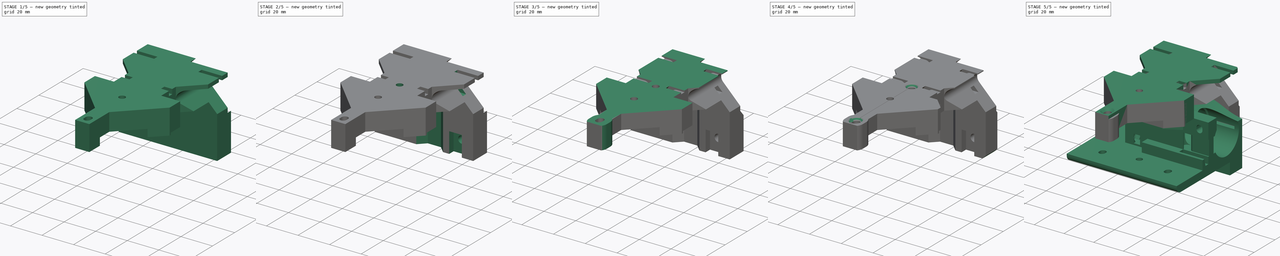
[diagram: build sequence overview — one tinted view per stage of 5, left to right]
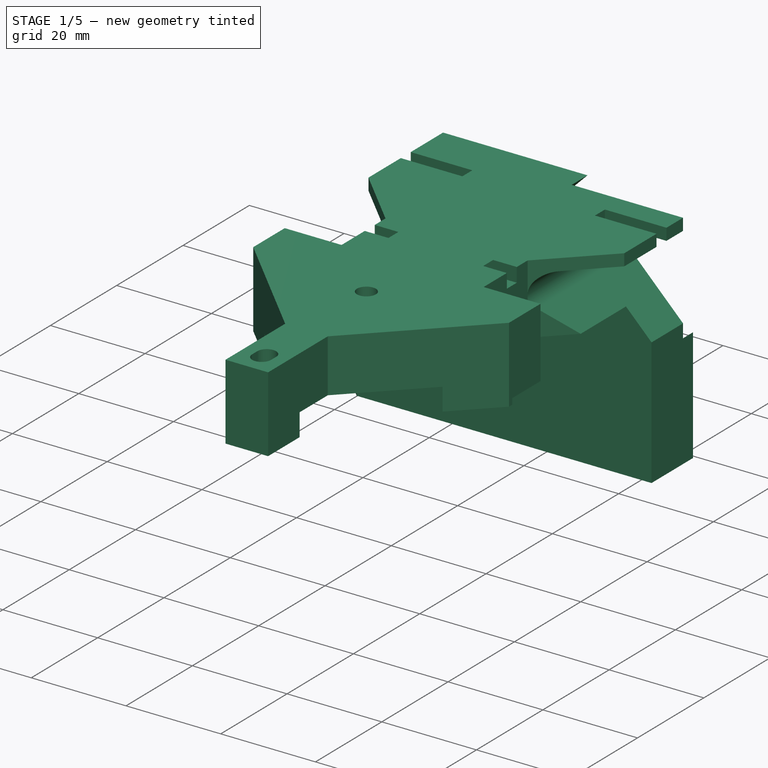
[diagram: stage 1 of 5 — iso view after this stage's code; geometry added in this stage tinted green]
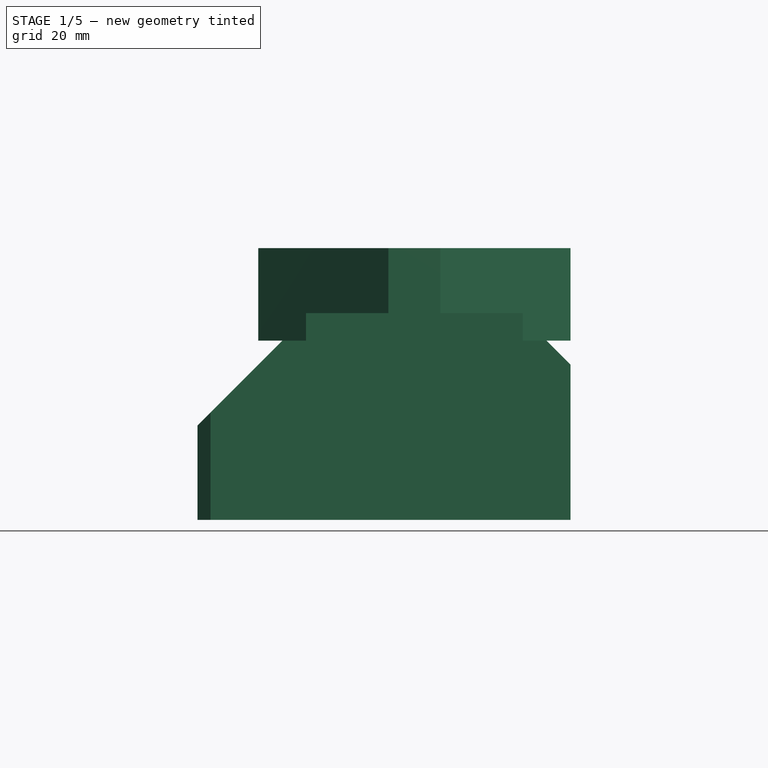
[diagram: stage 1 of 5 — front view after this stage's code; geometry added in this stage tinted green]
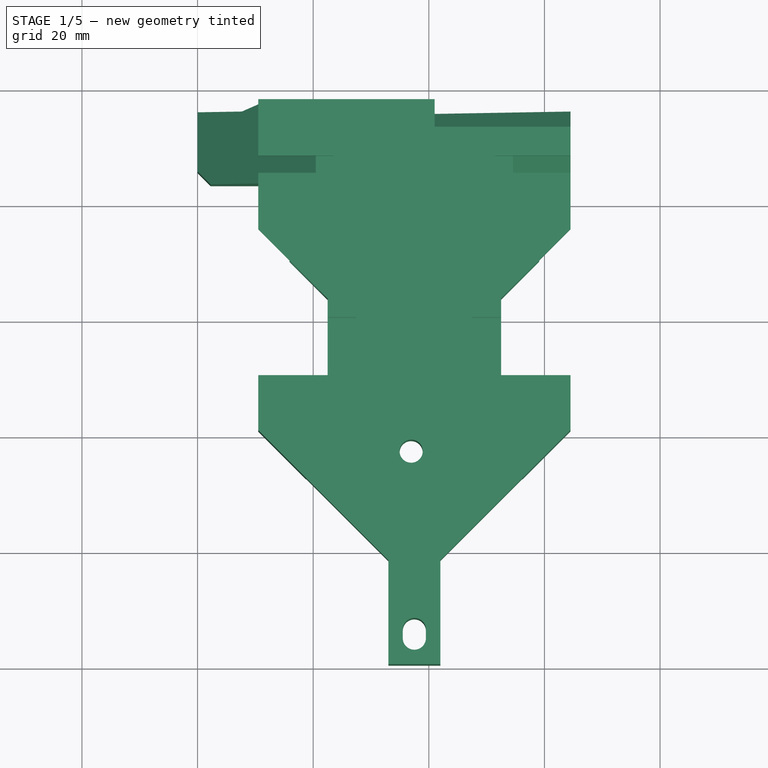
[diagram: stage 1 of 5 — top view after this stage's code; geometry added in this stage tinted green]
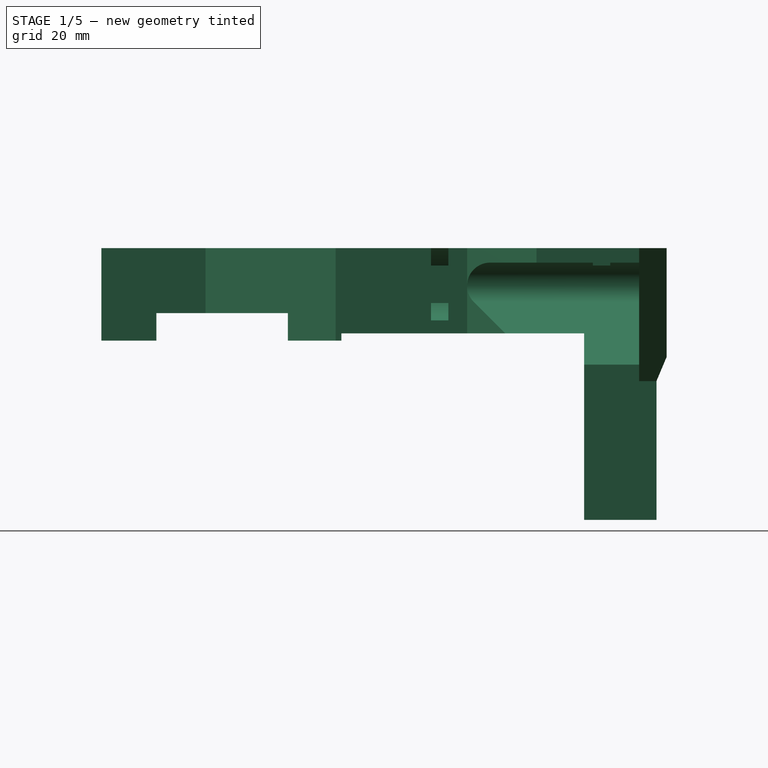
[diagram: stage 1 of 5 — right view after this stage's code; geometry added in this stage tinted green]
FCSTD DOCUMENT  (FreeCAD 0.17R13662 (Git))
Label: x_carriage_cover_v1.4
License: CreativeCommons Attribution-ShareAlike
LicenseURL: http://creativecommons.org/licenses/by-sa/4.0/
objects: Sketcher::SketchObject×22, PartDesign::Pocket×20, App::FeaturePython×14, PartDesign::Chamfer×8, Part::FeaturePython×4, PartDesign::Pad×2, PartDesign::Body×1
note: 79 computed .brp shape members not serialized (recipe doc carries the construction recipe); baked Part::Feature solids carry a one-line shape summary decoded from their .brp

FEATURE [Sketcher::SketchObject] Sketch
  MapMode = 5
  Support = -> [XY_Plane]
  sketch-geometry (23):
    g0: LineSegment StartX=33 StartY=0 StartZ=0 EndX=33 EndY=18 EndZ=0
    g1: LineSegment StartX=33 StartY=18 StartZ=0 EndX=10.5 EndY=40.5 EndZ=0
    g2: LineSegment StartX=10.5 StartY=40.5 StartZ=0 EndX=10.5 EndY=50 EndZ=0
    g3: LineSegment StartX=10.5 StartY=50 StartZ=0 EndX=22.5 EndY=50 EndZ=0
    g4: LineSegment StartX=22.5 StartY=50 StartZ=0 EndX=22.5 EndY=63.25 EndZ=0
    g5: LineSegment StartX=22.5 StartY=63.25 StartZ=0 EndX=0 EndY=85.75 EndZ=0
    g6: LineSegment StartX=0 StartY=85.75 StartZ=0 EndX=0 EndY=97.75 EndZ=0
    g7: LineSegment StartX=0 StartY=97.75 StartZ=0 EndX=42.5 EndY=97.75 EndZ=0
    g8: LineSegment StartX=42.5 StartY=97.75 StartZ=0 EndX=42.5 EndY=96 EndZ=0
    g9: LineSegment StartX=42.5 StartY=96 StartZ=0 EndX=64.5 EndY=96 EndZ=0
    g10: LineSegment StartX=64.5 StartY=96 StartZ=0 EndX=64.5 EndY=75.25 EndZ=0
    g11: LineSegment StartX=64.5 StartY=75.25 StartZ=0 EndX=52.5 EndY=63.25 EndZ=0
    g12: LineSegment StartX=52.5 StartY=63.25 StartZ=0 EndX=52.5 EndY=50 EndZ=0
    g13: LineSegment StartX=52.5 StartY=50 StartZ=0 EndX=64.5 EndY=50 EndZ=0
    g14: LineSegment StartX=64.5 StartY=50 StartZ=0 EndX=64.5 EndY=40.5 EndZ=0
    g15: LineSegment StartX=64.5 StartY=40.5 StartZ=0 EndX=42 EndY=18 EndZ=0
    g16: LineSegment StartX=42 StartY=18 StartZ=0 EndX=42 EndY=0 EndZ=0
    g17: LineSegment StartX=42 StartY=0 StartZ=0 EndX=33 EndY=0 EndZ=0
    g18: Circle CenterX=36.95 CenterY=36.85 CenterZ=0 NormalX=0 NormalY=0 NormalZ=1 AngleXU=0 Radius=2
    g19: ArcOfCircle CenterX=37.5 CenterY=6 CenterZ=0 NormalX=0 NormalY=0 NormalZ=1 AngleXU=0 Radius=2 StartAngle=0 EndAngle=3.14159
    g20: ArcOfCircle CenterX=37.5 CenterY=4.5 CenterZ=0 NormalX=0 NormalY=0 NormalZ=1 AngleXU=0 Radius=2 StartAngle=3.14159 EndAngle=6.28319
    g21: LineSegment StartX=35.5 StartY=6 StartZ=0 EndX=35.5 EndY=4.5 EndZ=0
    g22: LineSegment StartX=39.5 StartY=6 StartZ=0 EndX=39.5 EndY=4.5 EndZ=0
  constraints (67):
    c: Coincident(g0,g1)
    c: Coincident(g1,g2)
    c: Coincident(g2,g3)
    c: Coincident(g3,g4)
    c: Coincident(g4,g5)
    c: Coincident(g5,g6)
    c: Coincident(g6,g7)
    c: Coincident(g7,g8)
    c: Coincident(g8,g9)
    c: Coincident(g9,g10)
    c: Coincident(g10,g11)
    c: Coincident(g11,g12)
    c: Coincident(g12,g13)
    c: Coincident(g13,g14)
    c: Coincident(g14,g15)
    c: Coincident(g15,g16)
    c: Coincident(g16,g17)
    c: Coincident(g17,g0)
    c: Horizontal(g17)
    c: Horizontal(g7)
    c: Horizontal(g9)
    c: Horizontal(g13)
    c: Horizontal(g3)
    c: Vertical(g2)
    c: Vertical(g14)
    c: Vertical(g16)
    c: Vertical(g0)
    c: Vertical(g10)
    c: Vertical(g8)
    c: Vertical(g6)
    c: Vertical(g4)
    c: Vertical(g12)
    c: PointOnObject(g0,g-1)
    c: DistanceX(g0) = 33
    c: DistanceX(g17,g17) = 9
    c: Equal(g16,g0)
    c: Angle(g1) = 2.35619
    c: DistanceY(g0,g0) = 18
    c: Angle(g15) = -2.35619
    c: Equal(g3,g13)
    c: Equal(g14,g2)
    c: Equal(g1,g15)
    c: DistanceY(g14,g14) = 9.5
    c: Equal(g12,g4)
    c: Parallel(g11,g15)
    c: Parallel(g5,g1)
    c: DistanceX(g13,g13) = 12
    c: DistanceY(g12,g12) = 13.25
    c: DistanceX(g11,g11) = 12
    c: DistanceY(g10,g10) = 20.75
    c: DistanceX(g7,g7) = 42.5
    c: DistanceY(g18) = 36.85
    c: Radius(g18) = 2
    c: Tangent(g19,g22) = 1.5708
    c: Tangent(g19,g21) = -1.5708
    c: Tangent(g21,g20) = -1.5708
    c: Tangent(g22,g20) = 1.5708
    c: Vertical(g21)
    c: Equal(g19,g20)
    c: DistanceY(g19) = 6
    c: Radius(g19) = 2
    c: DistanceY(g22,g22) = 1.5
    c: DistanceX(g1,g1) = 22.5
    c: DistanceX(g18) = 36.95
    c: DistanceX(g0,g20) = 4.5
    c: PointOnObject(g5,g-2)
    c: DistanceY(g6,g6) = 12
FEATURE [PartDesign::Pad] Pad
  Length = 47
  Length2 = 100
  Profile = -> Sketch
  Reversed = true
  Type = 0
FEATURE [Sketcher::SketchObject] Sketch012
  MapMode = 5
  Placement = pos=(0,0,-14.75) rot=(1,0,0;3.14159rad)
  sketch-geometry (20):
    g0: LineSegment StartX=24.325 StartY=-65.5653 StartZ=0 EndX=50.825 EndY=-65.5653 EndZ=0
    g1: LineSegment StartX=50.825 StartY=-65.5653 StartZ=0 EndX=50.825 EndY=-81.0653 EndZ=0
    g2: LineSegment StartX=50.825 StartY=-81.0653 StartZ=0 EndX=24.325 EndY=-81.0653 EndZ=0
    g3: LineSegment StartX=24.325 StartY=-81.0653 StartZ=0 EndX=24.325 EndY=-65.5653 EndZ=0
    g4: LineSegment StartX=24.375 StartY=-30.6999 StartZ=0 EndX=50.875 EndY=-30.6999 EndZ=0
    g5: LineSegment StartX=50.875 StartY=-30.6999 StartZ=0 EndX=40.875 EndY=-20.6999 EndZ=0
    g6: LineSegment StartX=40.875 StartY=-20.6999 StartZ=0 EndX=34.375 EndY=-20.6999 EndZ=0
    g7: LineSegment StartX=34.375 StartY=-20.6999 StartZ=0 EndX=24.375 EndY=-30.6999 EndZ=0
    g8: LineSegment StartX=13.5 StartY=-44 StartZ=0 EndX=61.5 EndY=-44 EndZ=0
    g9: LineSegment StartX=61.5 StartY=-44 StartZ=0 EndX=61.5 EndY=-47.5 EndZ=0
    g10: LineSegment StartX=61.5 StartY=-47.5 StartZ=0 EndX=47.5 EndY=-47.5 EndZ=0
    g11: LineSegment StartX=47.5 StartY=-47.5 StartZ=0 EndX=47.5 EndY=-52.5 EndZ=0
    g12: LineSegment StartX=47.5 StartY=-52.5 StartZ=0 EndX=42.5 EndY=-52.5 EndZ=0
    g13: LineSegment StartX=42.5 StartY=-52.5 StartZ=0 EndX=39 EndY=-49.5 EndZ=0
    g14: LineSegment StartX=39 StartY=-49.5 StartZ=0 EndX=36 EndY=-49.5 EndZ=0
    g15: LineSegment StartX=36 StartY=-49.5 StartZ=0 EndX=32.5 EndY=-52.5 EndZ=0
    g16: LineSegment StartX=32.5 StartY=-52.5 StartZ=0 EndX=27.5 EndY=-52.5 EndZ=0
    g17: LineSegment StartX=27.5 StartY=-52.5 StartZ=0 EndX=27.5 EndY=-47.5 EndZ=0
    g18: LineSegment StartX=27.5 StartY=-47.5 StartZ=0 EndX=13.5 EndY=-47.5 EndZ=0
    g19: LineSegment StartX=13.5 StartY=-47.5 StartZ=0 EndX=13.5 EndY=-44 EndZ=0
  constraints (60):
    c: Coincident(g0,g1)
    c: Coincident(g1,g2)
    c: Coincident(g2,g3)
    c: Coincident(g3,g0)
    c: Horizontal(g0)
    c: Horizontal(g2)
    c: Vertical(g1)
    c: Vertical(g3)
    c: Coincident(g4,g5)
    c: Coincident(g5,g6)
    c: Coincident(g6,g7)
    c: Coincident(g8,g9)
    c: Coincident(g9,g10)
    c: Coincident(g10,g11)
    c: Coincident(g11,g12)
    c: Coincident(g12,g13)
    c: Coincident(g13,g14)
    c: Coincident(g14,g15)
    c: Coincident(g15,g16)
    c: Coincident(g16,g17)
    c: Coincident(g17,g18)
    c: Coincident(g18,g19)
    c: Coincident(g8,g19)
    c: Coincident(g4,g7)
    c: Horizontal(g14)
    c: Horizontal(g16)
    c: Horizontal(g12)
    c: Horizontal(g10)
    c: Horizontal(g8)
    c: Horizontal(g18)
    c: Horizontal(g4)
    c: Horizontal(g6)
    c: Vertical(g11)
    c: Vertical(g17)
    c: Vertical(g19)
    c: Vertical(g9)
    c: DistanceY(g8) = -44
    c: DistanceX(g8,g8) = 48
    c: DistanceY(g9,g9) = 3.5
    c: Equal(g19,g9)
    c: Equal(g10,g18)
    c: Equal(g12,g16)
    c: DistanceX(g14,g14) = 3
    c: Equal(g15,g13)
    c: DistanceX(g12,g12) = 5
    c: DistanceX(g10,g10) = 14
    c: Equal(g17,g11)
    c: DistanceY(g11,g11) = 5
    c: DistanceY(g15,g15) = 3
    c: DistanceY(g6) = -20.6999
    c: DistanceX(g6,g6) = 6.5
    c: Equal(g5,g7)
    c: Angle(g7) = -2.35619
    c: DistanceY(g5,g5) = 10
    c: DistanceY(g0) = -65.5653
    c: DistanceX(g0,g0) = 26.5
    c: DistanceY(g1,g1) = 15.5
    c: DistanceX(g6) = 34.375
    c: DistanceX(g-1,g8) = 13.5
    c: DistanceX(g0) = 24.325
FEATURE [Sketcher::SketchObject] Sketch015
  MapMode = 5
  Placement = pos=(0,96,0) rot=(0,0.707107,0.707107;3.14159rad)
  sketch-geometry (1):
    g0: Circle CenterX=-54.5 CenterY=-39 CenterZ=0 NormalX=0 NormalY=0 NormalZ=1 AngleXU=0 Radius=2.35
  constraints (3):
    c: DistanceY(g0) = -39
    c: Radius(g0) = 2.35
    c: DistanceX(g0) = -54.5
FEATURE [Sketcher::SketchObject] Sketch016
  MapMode = 5
  Placement = pos=(0,0,-47) rot=(1,0,0;3.14159rad)
  sketch-geometry (4):
    g0: LineSegment StartX=49.3 StartY=-83.5 StartZ=0 EndX=57.3 EndY=-83.5 EndZ=0
    g1: LineSegment StartX=57.3 StartY=-83.5 StartZ=0 EndX=57.3 EndY=-87.5 EndZ=0
    g2: LineSegment StartX=57.3 StartY=-87.5 StartZ=0 EndX=49.3 EndY=-87.5 EndZ=0
    g3: LineSegment StartX=49.3 StartY=-87.5 StartZ=0 EndX=49.3 EndY=-83.5 EndZ=0
  constraints (12):
    c: Coincident(g0,g1)
    c: Coincident(g1,g2)
    c: Coincident(g2,g3)
    c: Coincident(g3,g0)
    c: Horizontal(g0)
    c: Horizontal(g2)
    c: Vertical(g1)
    c: Vertical(g3)
    c: DistanceX(g0,g0) = 8
    c: DistanceY(g1,g1) = 4
    c: DistanceY(g0) = -83.5
    c: DistanceX(g2) = 49.3
FEATURE [PartDesign::Pocket] Pocket
  BaseFeature = -> Pad
  Length = 5
  Length2 = 100
  Profile = -> Sketch001
  Type = 1
FEATURE [PartDesign::Pocket] Pocket001
  BaseFeature = -> Pocket
  Length = 3
  Length2 = 100
  Profile = -> Sketch002
  Type = 0
FEATURE [PartDesign::Pocket] Pocket002
  BaseFeature = -> Pocket001
  Length = 5
  Length2 = 100
  Profile = -> Sketch003
  Type = 0
FEATURE [PartDesign::Pocket] Pocket003
  BaseFeature = -> Pocket002
  Length = 35
  Length2 = 100
  Profile = -> Sketch004
  Type = 0
FEATURE [PartDesign::Pocket] Pocket004
  BaseFeature = -> Pocket003
  Length = 3
  Length2 = 100
  Profile = -> Sketch005
  Reversed = true
  Type = 0
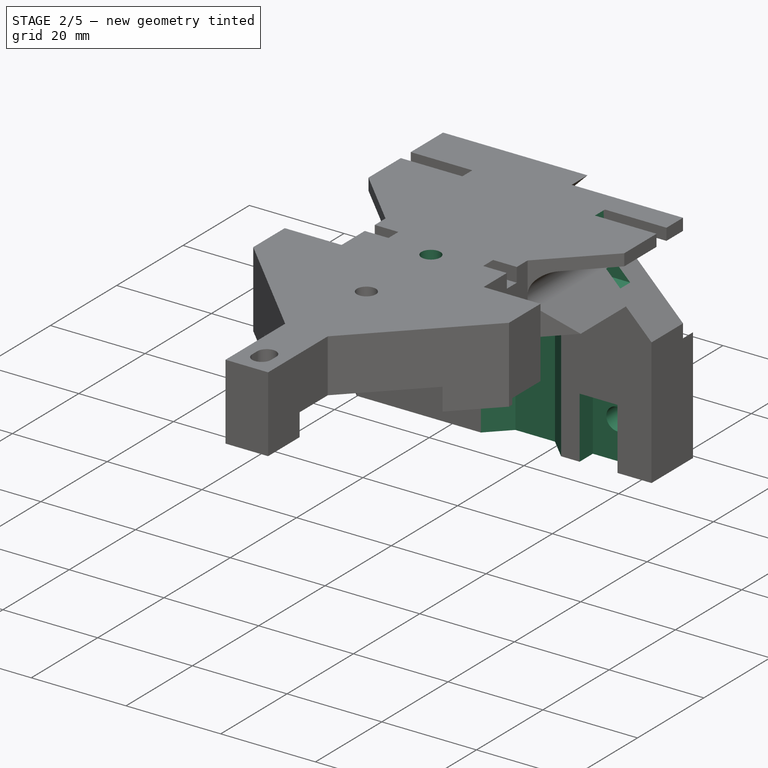
[diagram: stage 2 of 5 — iso view after this stage's code; geometry added in this stage tinted green]
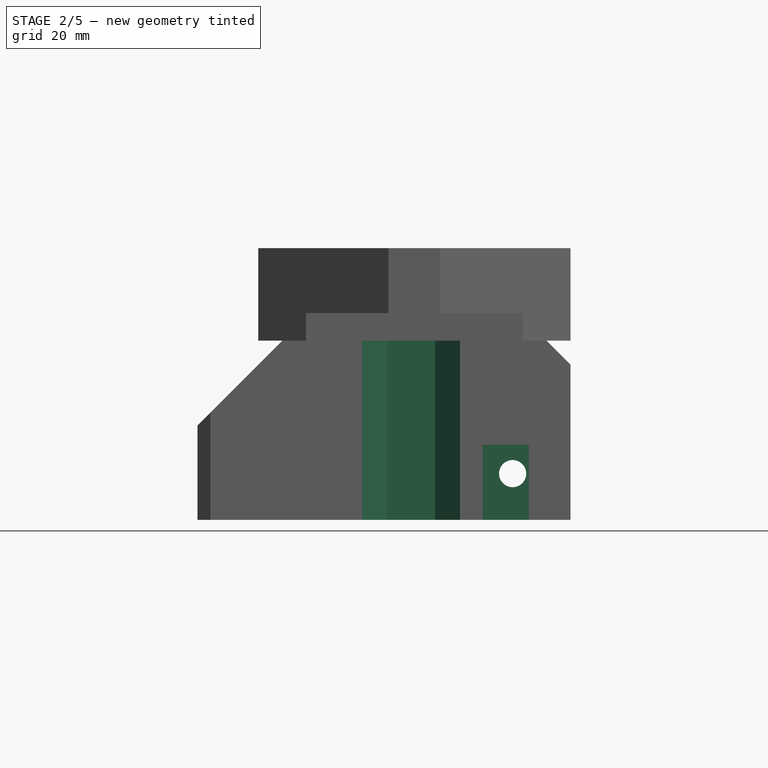
[diagram: stage 2 of 5 — front view after this stage's code; geometry added in this stage tinted green]
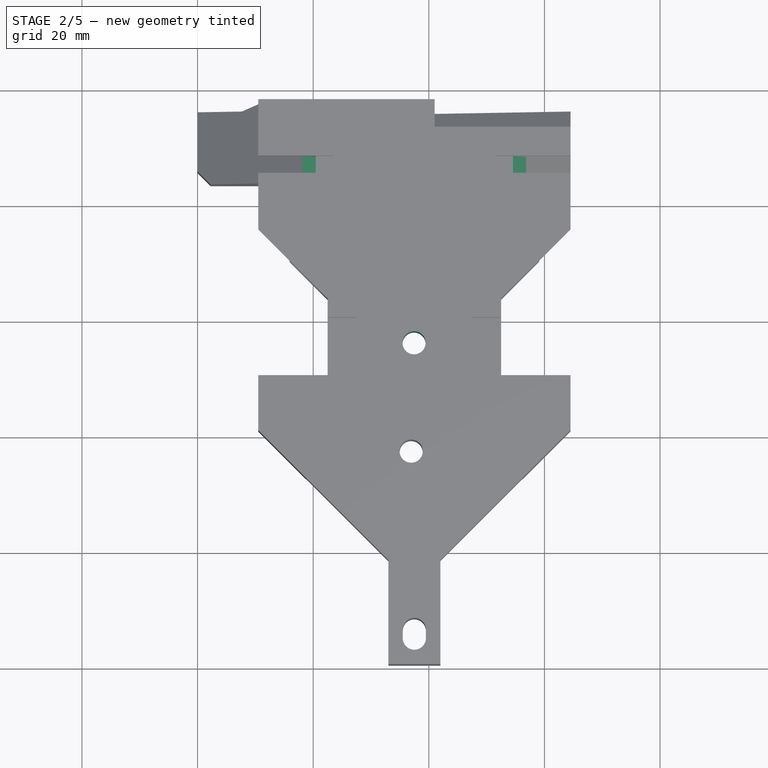
[diagram: stage 2 of 5 — top view after this stage's code; geometry added in this stage tinted green]
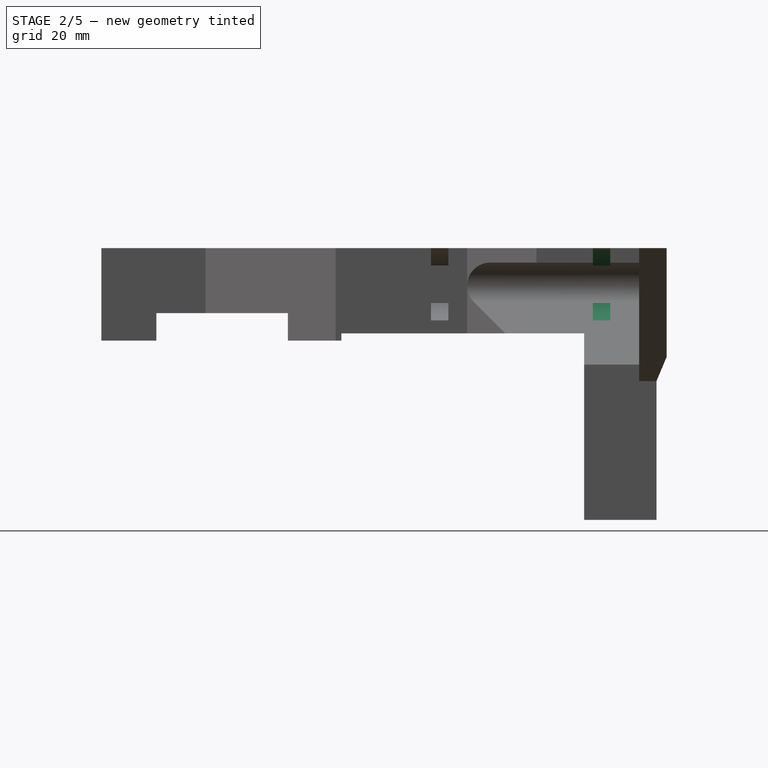
[diagram: stage 2 of 5 — right view after this stage's code; geometry added in this stage tinted green]
FEATURE [PartDesign::Pocket] Pocket005
  BaseFeature = -> Pocket004
  Length = 3
  Length2 = 100
  Profile = -> Sketch006
  Reversed = true
  Type = 0
FEATURE [PartDesign::Pocket] Pocket006
  BaseFeature = -> Pocket005
  Length = 7
  Length2 = 100
  Profile = -> Sketch007
  Type = 0
FEATURE [PartDesign::Pocket] Pocket007
  BaseFeature = -> Pocket006
  Length = 32.25
  Length2 = 100
  Profile = -> Sketch010
  Type = 0
FEATURE [PartDesign::Pocket] Pocket008
  BaseFeature = -> Pocket007
  Length = 5
  Length2 = 100
  Profile = -> Sketch011
  Type = 1
FEATURE [PartDesign::Pocket] Pocket009
  BaseFeature = -> Pocket008
  Length = 11
  Length2 = 100
  Profile = -> Sketch012
  Type = 0
FEATURE [PartDesign::Pocket] Pocket010
  BaseFeature = -> Pocket009
  Length = 5
  Length2 = 100
  Profile = -> Sketch015
  Type = 1
FEATURE [PartDesign::Pocket] Pocket011
  BaseFeature = -> Pocket010
  Length = 13
  Length2 = 100
  Profile = -> Sketch016
  Type = 0
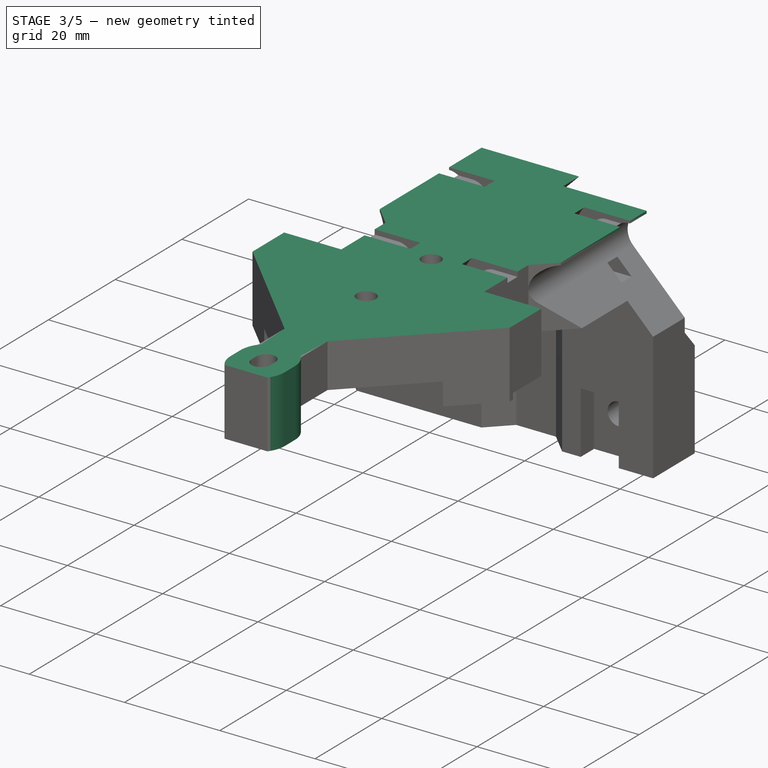
[diagram: stage 3 of 5 — iso view after this stage's code; geometry added in this stage tinted green]
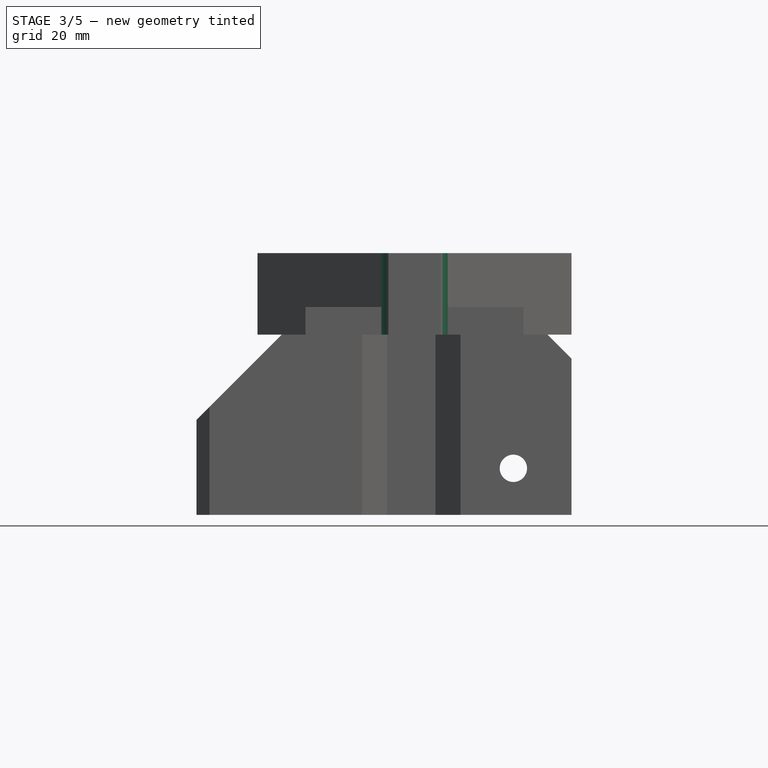
[diagram: stage 3 of 5 — front view after this stage's code; geometry added in this stage tinted green]
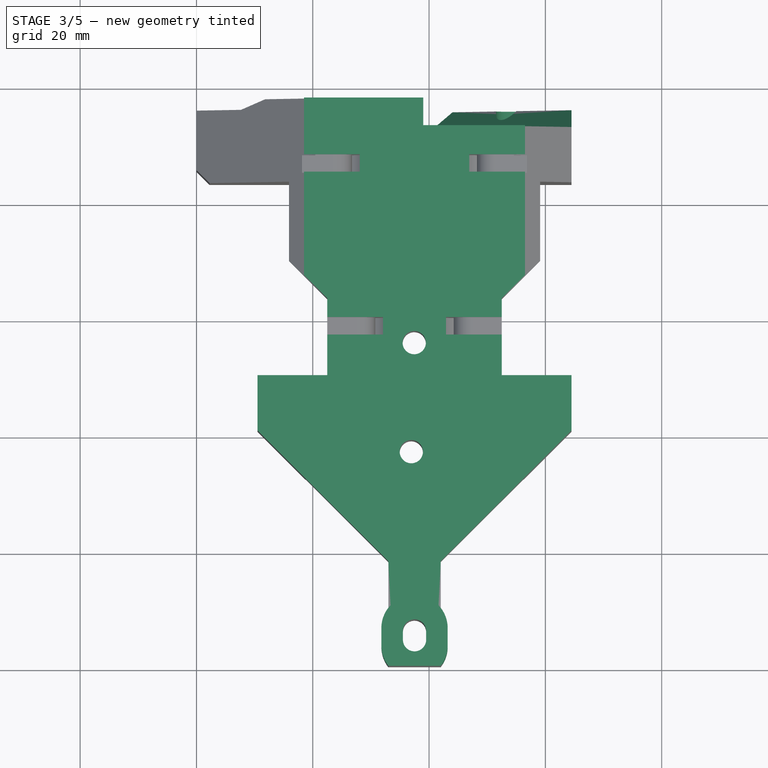
[diagram: stage 3 of 5 — top view after this stage's code; geometry added in this stage tinted green]
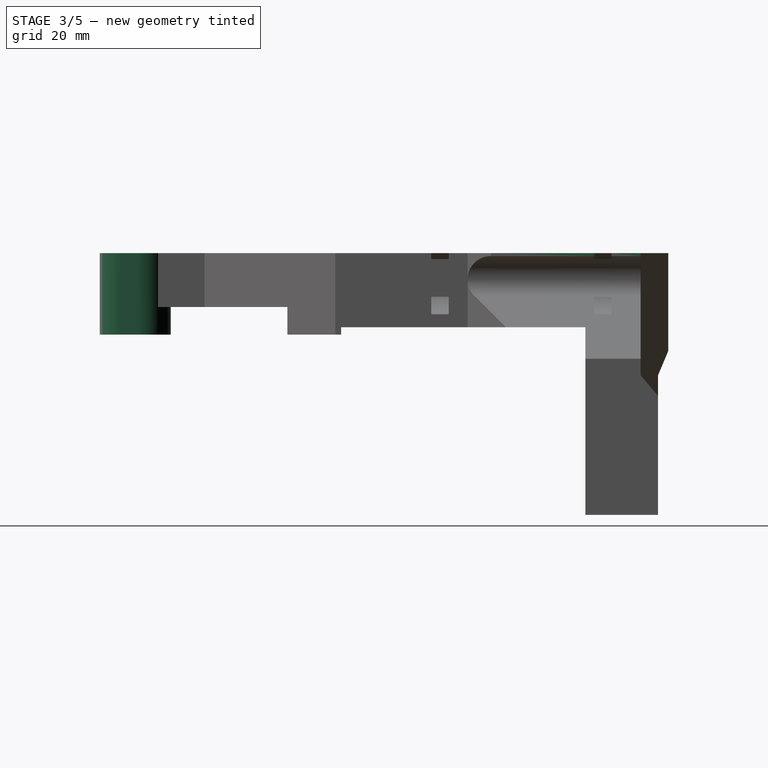
[diagram: stage 3 of 5 — right view after this stage's code; geometry added in this stage tinted green]
FEATURE [App::FeaturePython] axialConstraint01  label="axialConstraint01__x_carriage_cover_v1_1_01"  # a2plus constraint (typed FeaturePython)
  Object1 = x_carriage_v0_1_01
  Object2 = x_carriage_cover_v1_1_01
  SubElement1 = Face59
  SubElement2 = Face117
  Type = axial
  directionConstraint = 0
  lockRotation = false
FEATURE [App::FeaturePython] axialConstraint01_mirror  label="axialConstraint01__x_carriage_v0_1_01"  # a2plus constraint (typed FeaturePython)
  Object1 = x_carriage_v0_1_01
  Object2 = x_carriage_cover_v1_1_01
  SubElement1 = Face59
  SubElement2 = Face117
  Type = axial
  directionConstraint = 0
  lockRotation = false
FEATURE [App::FeaturePython] circularEdgeConstraint01001  label="circularEdgeConstraint01__Pocket014"  # a2plus constraint (typed FeaturePython)
  Object1 = x_carriage_cover_v1_1_01
  Object2 = Pocket013
  SubElement1 = Edge83
  SubElement2 = Edge44
  Type = circularEdge
  directionConstraint = 0
  lockRotation = false
  offset = 0
FEATURE [App::FeaturePython] circularEdgeConstraint01_mirror001  label="circularEdgeConstraint01__x_carriage_cover_v1_1_002"  # a2plus constraint (typed FeaturePython)
  Object1 = x_carriage_cover_v1_1_01
  Object2 = Pocket013
  SubElement1 = Edge83
  SubElement2 = Edge44
  Type = circularEdge
  directionConstraint = 0
  lockRotation = false
  offset = 0
FEATURE [App::FeaturePython] circularEdgeConstraint01002  label="circularEdgeConstraint01__Pocket015"  # a2plus constraint (typed FeaturePython)
  Object1 = x_carriage_cover_v1_1_01
  Object2 = Pocket013
  SubElement1 = Edge83
  SubElement2 = Edge44
  Type = circularEdge
  directionConstraint = 0
  lockRotation = false
  offset = 0
FEATURE [App::FeaturePython] circularEdgeConstraint01_mirror002  label="circularEdgeConstraint01__x_carriage_cover_v1_1_003"  # a2plus constraint (typed FeaturePython)
  Object1 = x_carriage_cover_v1_1_01
  Object2 = Pocket013
  SubElement1 = Edge83
  SubElement2 = Edge44
  Type = circularEdge
  directionConstraint = 0
  lockRotation = false
  offset = 0
FEATURE [App::FeaturePython] axialConstraint01001  label="axialConstraint01__x_carriage_v0_1_002"  # a2plus constraint (typed FeaturePython)
  Object1 = x_carriage_cover_v1_1_01
  Object2 = x_carriage_v0_1_01
  SubElement1 = Face59
  SubElement2 = Face117
  Type = axial
  directionConstraint = 0
  lockRotation = false
FEATURE [App::FeaturePython] axialConstraint01_mirror001  label="axialConstraint01__x_carriage_cover_v1_1_002"  # a2plus constraint (typed FeaturePython)
  Object1 = x_carriage_cover_v1_1_01
  Object2 = x_carriage_v0_1_01
  SubElement1 = Face59
  SubElement2 = Face117
  Type = axial
  directionConstraint = 0
  lockRotation = false
FEATURE [App::FeaturePython] circularEdgeConstraint01_mirror003  label="circularEdgeConstraint01__x_carriage_cover_v1_1_004"  # a2plus constraint (typed FeaturePython)
  Object1 = x_carriage_cover_v1_1_01
  Object2 = Pad
  SubElement1 = Edge83
  SubElement2 = Edge68
  Type = circularEdge
  directionConstraint = 0
  lockRotation = false
  offset = 0
FEATURE [App::FeaturePython] circularEdgeConstraint01003  label="circularEdgeConstraint01__Pad"  # a2plus constraint (typed FeaturePython)
  Object1 = x_carriage_cover_v1_1_01
  Object2 = Pad
  SubElement1 = Edge83
  SubElement2 = Edge68
  Type = circularEdge
  directionConstraint = 0
  lockRotation = false
  offset = 0
FEATURE [App::FeaturePython] circularEdgeConstraint02  label="circularEdgeConstraint02__Pad"  # a2plus constraint (typed FeaturePython)
  Object1 = x_carriage_cover_v1_1_01
  Object2 = Pad
  SubElement1 = Edge83
  SubElement2 = Edge68
  Type = circularEdge
  directionConstraint = 0
  lockRotation = false
  offset = 0
FEATURE [App::FeaturePython] circularEdgeConstraint02_mirror  label="circularEdgeConstraint02__x_carriage_cover_v1_1_01"  # a2plus constraint (typed FeaturePython)
  Object1 = x_carriage_cover_v1_1_01
  Object2 = Pad
  SubElement1 = Edge83
  SubElement2 = Edge68
  Type = circularEdge
  directionConstraint = 0
  lockRotation = false
  offset = 0
FEATURE [App::FeaturePython] circularEdgeConstraint01004  label="circularEdgeConstraint01__Pad001"  # a2plus constraint (typed FeaturePython)
  Object1 = x_carriage_cover_v1_1_01
  Object2 = Pad
  SubElement1 = Edge83
  SubElement2 = Edge68
  Type = circularEdge
  directionConstraint = 0
  lockRotation = false
  offset = 0
FEATURE [App::FeaturePython] circularEdgeConstraint01_mirror004  label="circularEdgeConstraint01__x_carriage_cover_v1_1_005"  # a2plus constraint (typed FeaturePython)
  Object1 = x_carriage_cover_v1_1_01
  Object2 = Pad
  SubElement1 = Edge83
  SubElement2 = Edge68
  Type = circularEdge
  directionConstraint = 0
  lockRotation = false
  offset = 0
FEATURE [Part::FeaturePython] x_carriage_cover_v1_01  # a2plus imported part (geometry in sourceFile) (typed FeaturePython)
  fixedPosition = true
  sourceFile = <userpath>/Projects/taz-redgum/production_parts/printed_parts/x_carriage_cover/x_carriage_cover_v1.fcstd
  timeLastImport = 1.5526e+09
  updateColors = true
FEATURE [Part::FeaturePython] x_carriage_cover_v1_01001  label="x_carriage_cover_v1_002"  # a2plus imported part (geometry in sourceFile) (typed FeaturePython)
  Placement = pos=(9.5,0,0) rot=(0,0,1;0rad)
  fixedPosition = true
  sourceFile = <userpath>/Projects/taz-redgum/production_parts/printed_parts/x_carriage_cover/x_carriage_cover_v1.fcstd
  timeLastImport = 1.5526e+09
  updateColors = true
FEATURE [PartDesign::Pocket] Pocket012
  BaseFeature = -> Pocket011
  Length = 2
  Length2 = 100
  Profile = -> Sketch018
  Type = 0
FEATURE [Sketcher::SketchObject] Sketch019
  ExternalGeometry = -> [Pocket012]
  MapMode = 5
  Placement = pos=(22.1716,0,22.1716) rot=(0,1,0;0.785398rad)
  Support = -> [Pocket012]
  sketch-geometry (3):
    g0: LineSegment StartX=61.8718 StartY=93 StartZ=0 EndX=64.3718 EndY=96 EndZ=0
    g1: LineSegment StartX=64.3718 StartY=96 StartZ=0 EndX=61.8718 EndY=96 EndZ=0
    g2: LineSegment StartX=61.8718 StartY=96 StartZ=0 EndX=61.8718 EndY=93 EndZ=0
  constraints (9):
    c: Coincident(g0,g1)
    c: Coincident(g1,g2)
    c: Coincident(g2,g0)
    c: DistanceY(g0) = 93
    c: Vertical(g2)
    c: Horizontal(g1)
    c: DistanceY(g2,g2) = 3
    c: DistanceX(g1,g1) = 2.5
    c: Coincident(g1,g-3)
FEATURE [PartDesign::Pocket] Pocket013
  BaseFeature = -> Pocket012
  Length = 5
  Length2 = 100
  Profile = -> Sketch019
  Type = 1
FEATURE [PartDesign::Pocket] Pocket014
  BaseFeature = -> Pocket013
  Length = 2
  Length2 = 100
  Profile = -> Pocket013 [Face2]
  Type = 0
FEATURE [Sketcher::SketchObject] Sketch013
  MapMode = 5
  Placement = pos=(0,0,-2) rot=(0,0,1;0rad)
  Support = -> [Pocket014]
  sketch-geometry (4):
    g0: LineSegment StartX=37.55 StartY=53.6 StartZ=0 EndX=37.65 EndY=53.6 EndZ=0
    g1: LineSegment StartX=37.65 StartY=53.6 StartZ=0 EndX=37.65 EndY=0 EndZ=0
    g2: LineSegment StartX=37.65 StartY=0 StartZ=0 EndX=37.55 EndY=0 EndZ=0
    g3: LineSegment StartX=37.55 StartY=0 StartZ=0 EndX=37.55 EndY=53.6 EndZ=0
  constraints (12):
    c: Coincident(g0,g1)
    c: Coincident(g1,g2)
    c: Coincident(g2,g3)
    c: Coincident(g3,g0)
    c: Horizontal(g0)
    c: Horizontal(g2)
    c: Vertical(g1)
    c: Vertical(g3)
    c: PointOnObject(g1,g-1)
    c: DistanceX(g2,g2) = 0.1
    c: DistanceY(g1,g1) = 53.6
    c: DistanceX(g2) = 37.55
FEATURE [Sketcher::SketchObject] Sketch020
  MapMode = 5
  Placement = pos=(0,0,-2) rot=(0,0,1;0rad)
  Support = -> [Pocket014]
  sketch-geometry (10):
    g0: ArcOfCircle CenterX=37.5 CenterY=3.5 CenterZ=0 NormalX=0 NormalY=0 NormalZ=1 AngleXU=0 Radius=5.70088 StartAngle=3.14159 EndAngle=3.80264
    g1: ArcOfCircle CenterX=37.5 CenterY=6.5 CenterZ=0 NormalX=0 NormalY=0 NormalZ=1 AngleXU=0 Radius=5.70088 StartAngle=0 EndAngle=3.14159
    g2: LineSegment StartX=43.2009 StartY=3.5 StartZ=0 EndX=43.2009 EndY=6.5 EndZ=0
    g3: LineSegment StartX=31.7991 StartY=3.5 StartZ=0 EndX=31.7991 EndY=6.5 EndZ=0
    g4: LineSegment StartX=33 StartY=0 StartZ=0 EndX=42 EndY=0 EndZ=0
    g5: ArcOfCircle CenterX=37.5 CenterY=3.5 CenterZ=0 NormalX=0 NormalY=0 NormalZ=1 AngleXU=0 Radius=5.70088 StartAngle=5.62214 EndAngle=6.28319
    g6: ArcOfCircle CenterX=37.5 CenterY=4.5 CenterZ=0 NormalX=0 NormalY=0 NormalZ=1 AngleXU=0 Radius=2 StartAngle=3.14159 EndAngle=6.28319
    g7: ArcOfCircle CenterX=37.5 CenterY=6 CenterZ=0 NormalX=0 NormalY=0 NormalZ=1 AngleXU=0 Radius=2 StartAngle=0 EndAngle=3.14159
    g8: LineSegment StartX=39.5 StartY=4.5 StartZ=0 EndX=39.5 EndY=6 EndZ=0
    g9: LineSegment StartX=35.5 StartY=4.5 StartZ=0 EndX=35.5 EndY=6 EndZ=0
  constraints (28):
    c: Tangent(g0,g3) = 1.5708
    c: Tangent(g2,g1) = -1.5708
    c: Tangent(g3,g1) = 1.5708
    c: Vertical(g2)
    c: Equal(g0,g1)
    c: Equal(g0,g5)
    c: PointOnObject(g0,g4)
    c: PointOnObject(g5,g4)
    c: Coincident(g0,g5)
    c: DistanceX(g1) = 37.5
    c: DistanceY(g1) = 6.5
    c: DistanceY(g0,g1) = 3
    c: Coincident(g4,g5)
    c: Coincident(g0,g4)
    c: DistanceX(g4,g4) = 9
    c: Horizontal(g4)
    c: PointOnObject(g0,g-1)
    c: Tangent(g6,g9) = 1.5708
    c: Tangent(g6,g8) = -1.5708
    c: Tangent(g8,g7) = -1.5708
    c: Tangent(g9,g7) = 1.5708
    c: Vertical(g8)
    c: Equal(g6,g7)
    c: DistanceX(g1,g7) = 0
    c: DistanceY(g1,g7) = -0.5
    c: DistanceY(g6,g7) = 1.5
    c: Radius(g7) = 2
    c: Tangent(g5,g2) = -1.5708
FEATURE [PartDesign::Pad] Pad001
  BaseFeature = -> Pocket014
  Length = 14
  Length2 = 100
  Profile = -> Sketch020
  Reversed = true
  Type = 0
FEATURE [Sketcher::SketchObject] Sketch021
  MapMode = 5
  Placement = pos=(10.5,0,0) rot=(0.57735,-0.57735,-0.57735;2.0944rad)
  Support = -> [Pad001]
  sketch-geometry (4):
    g0: LineSegment StartX=-50 StartY=-14.75 StartZ=0 EndX=-41.5 EndY=-14.75 EndZ=0
    g1: LineSegment StartX=-41.5 StartY=-14.75 StartZ=0 EndX=-41.5 EndY=-12.5 EndZ=0
    g2: LineSegment StartX=-41.5 StartY=-12.5 StartZ=0 EndX=-50 EndY=-12.5 EndZ=0
    g3: LineSegment StartX=-50 StartY=-12.5 StartZ=0 EndX=-50 EndY=-14.75 EndZ=0
  constraints (12):
    c: Coincident(g0,g1)
    c: Coincident(g1,g2)
    c: Coincident(g2,g3)
    c: Coincident(g3,g0)
    c: Horizontal(g0)
    c: Horizontal(g2)
    c: Vertical(g1)
    c: Vertical(g3)
    c: DistanceX(g1) = -41.5
    c: DistanceY(g1) = -12.5
    c: DistanceX(g2,g2) = 8.5
    c: DistanceY(g3,g3) = 2.25
FEATURE [PartDesign::Pocket] Pocket015
  BaseFeature = -> Pad001
  Length = 12
  Length2 = 100
  Profile = -> Sketch021
  Type = 0
FEATURE [Sketcher::SketchObject] Sketch022
  MapMode = 5
  Placement = pos=(0,97.75,0) rot=(0,0.707107,0.707107;3.14159rad)
  Support = -> [Pocket014]
FEATURE [Sketcher::SketchObject] Sketch023
  MapMode = 5
  Placement = pos=(0,97.75,0) rot=(0,0.707107,0.707107;3.14159rad)
  Support = -> [Pocket015]
  sketch-geometry (12):
    g0: LineSegment StartX=-10.5 StartY=-2.5 StartZ=0 EndX=-18.5 EndY=-2.5 EndZ=0
    g1: LineSegment StartX=-18.5 StartY=-2.5 StartZ=0 EndX=-18.5 EndY=-2 EndZ=0
    g2: LineSegment StartX=-18.5 StartY=-2 StartZ=0 EndX=-10.5 EndY=-2 EndZ=0
    g3: LineSegment StartX=-10.5 StartY=-2 StartZ=0 EndX=-10.5 EndY=-2.5 EndZ=0
    g4: LineSegment StartX=-64.5 StartY=-2 StartZ=0 EndX=-56.5 EndY=-2 EndZ=0
    g5: LineSegment StartX=-56.5 StartY=-2 StartZ=0 EndX=-56.5 EndY=-2.5 EndZ=0
    g6: LineSegment StartX=-56.5 StartY=-2.5 StartZ=0 EndX=-64.5 EndY=-2.5 EndZ=0
    g7: LineSegment StartX=-64.5 StartY=-2.5 StartZ=0 EndX=-64.5 EndY=-2 EndZ=0
    g8: LineSegment [constr] StartX=-56.5 StartY=-2.5 StartZ=0 EndX=-18.5 EndY=-2.5 EndZ=0
    g9: LineSegment [constr] StartX=-18.5 StartY=-2.5 StartZ=0 EndX=-18.5 EndY=-2 EndZ=0
    g10: LineSegment [constr] StartX=-18.5 StartY=-2 StartZ=0 EndX=-56.5 EndY=-2 EndZ=0
    g11: LineSegment [constr] StartX=-56.5 StartY=-2 StartZ=0 EndX=-56.5 EndY=-2.5 EndZ=0
  constraints (34):
    c: Coincident(g0,g1)
    c: Coincident(g1,g2)
    c: Coincident(g2,g3)
    c: Coincident(g3,g0)
    c: Horizontal(g0)
    c: Horizontal(g2)
    c: Vertical(g1)
    c: Vertical(g3)
    c: Coincident(g4,g5)
    c: Coincident(g5,g6)
    c: Coincident(g6,g7)
    c: Coincident(g7,g4)
    c: Horizontal(g4)
    c: Horizontal(g6)
    c: Vertical(g5)
    c: Vertical(g7)
    c: Coincident(g8,g9)
    c: Coincident(g9,g10)
    c: Coincident(g10,g11)
    c: Coincident(g11,g8)
    c: Horizontal(g8)
    c: Horizontal(g10)
    c: Vertical(g9)
    c: Vertical(g11)
    c: Coincident(g8,g5)
    c: Coincident(g9,g1)
    c: DistanceX(g2) = -10.5
    c: DistanceY(g2) = -2
    c: DistanceY(g3,g3) = 0.5
    c: Coincident(g0,g8)
    c: DistanceX(g0,g0) = 8
    c: Coincident(g4,g10)
    c: DistanceX(g4) = -64.5
    c: Equal(g6,g0)
FEATURE [PartDesign::Pocket] Pocket016
  BaseFeature = -> Pocket015
  Length = 40
  Length2 = 100
  Profile = -> Sketch023
  Type = 0
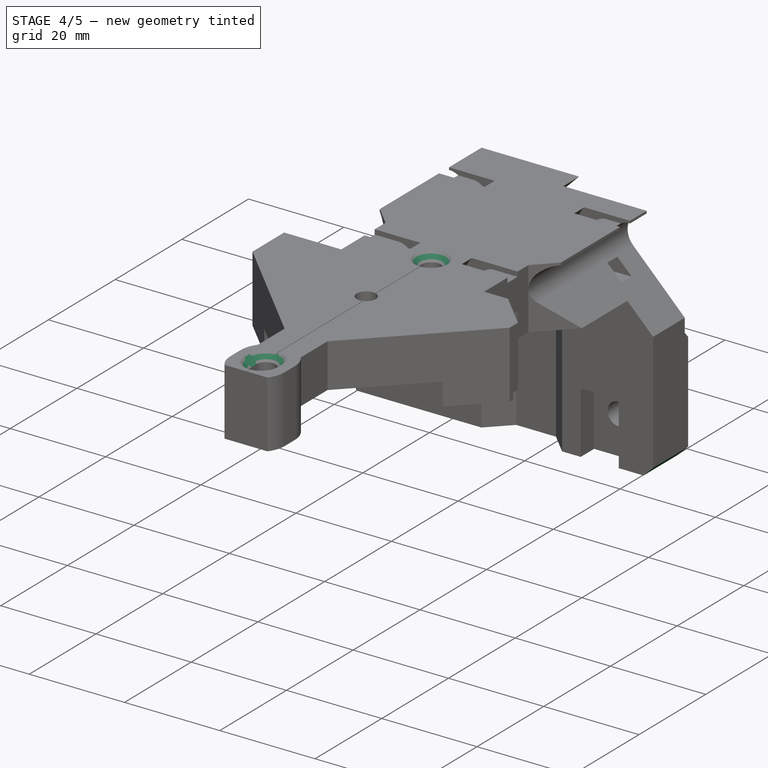
[diagram: stage 4 of 5 — iso view after this stage's code; geometry added in this stage tinted green]
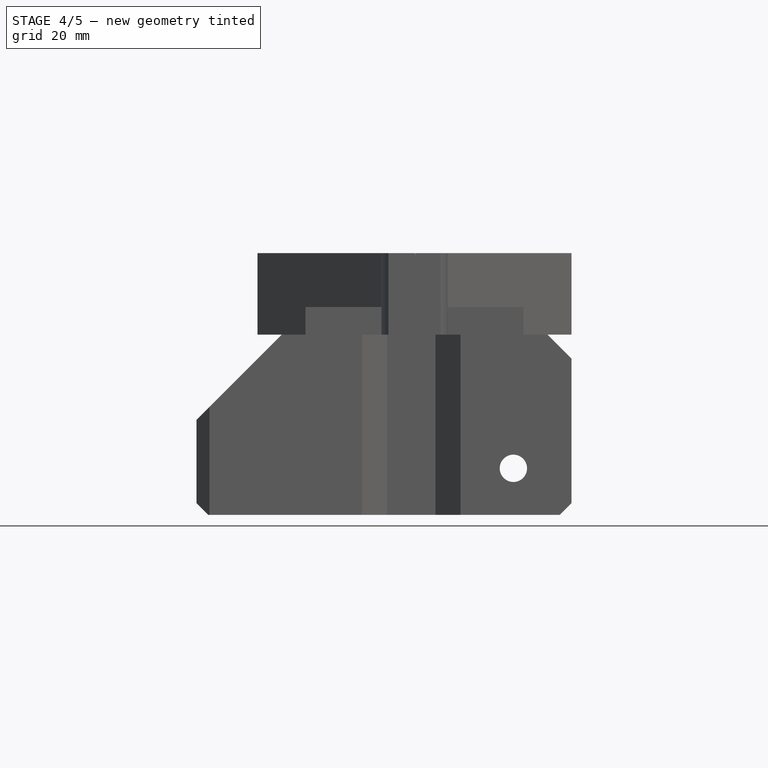
[diagram: stage 4 of 5 — front view after this stage's code; geometry added in this stage tinted green]
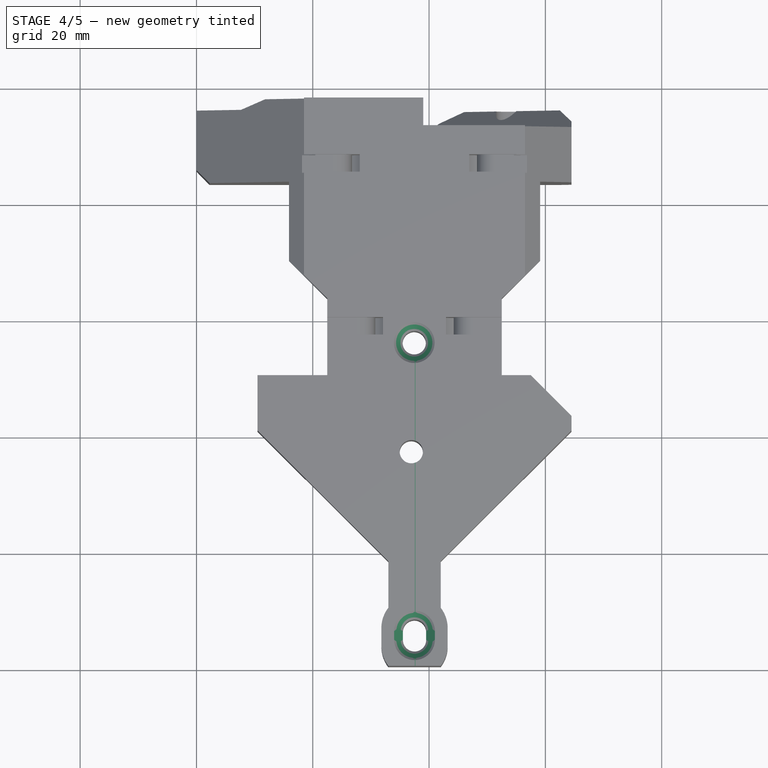
[diagram: stage 4 of 5 — top view after this stage's code; geometry added in this stage tinted green]
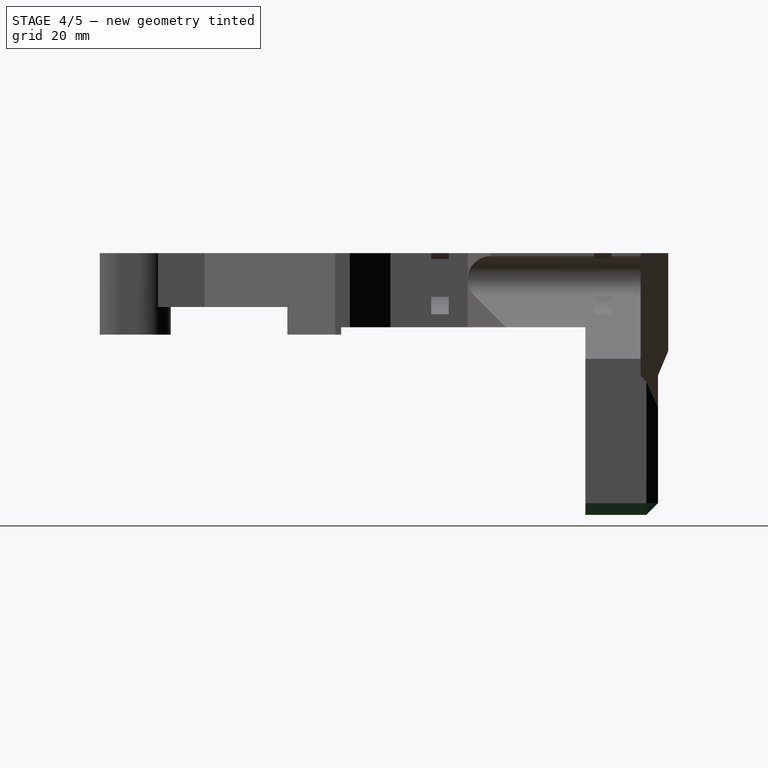
[diagram: stage 4 of 5 — right view after this stage's code; geometry added in this stage tinted green]
FEATURE [PartDesign::Chamfer] Chamfer
  Base = -> Pocket016 [Edge53,Edge205]
  BaseFeature = -> Pocket016
  Size = 1.5
FEATURE [PartDesign::Pocket] Pocket017
  BaseFeature = -> Chamfer
  Length = 0.3
  Length2 = 100
  Profile = -> Sketch013
  Type = 0
FEATURE [PartDesign::Chamfer] Chamfer001
  Base = -> Pocket017 [Edge145,Edge330,Edge329,Edge339,Edge318,Edge146]
  BaseFeature = -> Pocket017
  Size = 2
FEATURE [PartDesign::Chamfer] Chamfer002
  Base = -> Chamfer001 [Edge363]
  BaseFeature = -> Chamfer001
  Size = 3.49
FEATURE [PartDesign::Chamfer] Chamfer003
  Base = -> Chamfer002 [Edge149]
  BaseFeature = -> Chamfer002
  Size = 2.49
FEATURE [PartDesign::Chamfer] Chamfer004
  Base = -> Chamfer003 [Edge170]
  BaseFeature = -> Chamfer003
  Size = 7
FEATURE [PartDesign::Chamfer] Chamfer005
  Base = -> Chamfer004 [Edge306,Edge296]
  BaseFeature = -> Chamfer004
  Size = 1
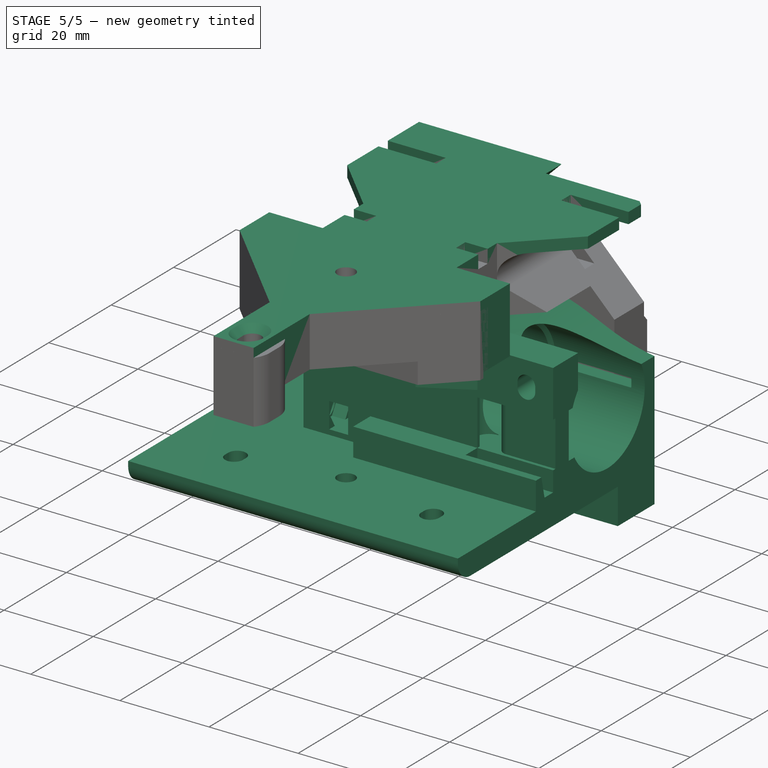
[diagram: stage 5 of 5 — iso view after this stage's code; geometry added in this stage tinted green]
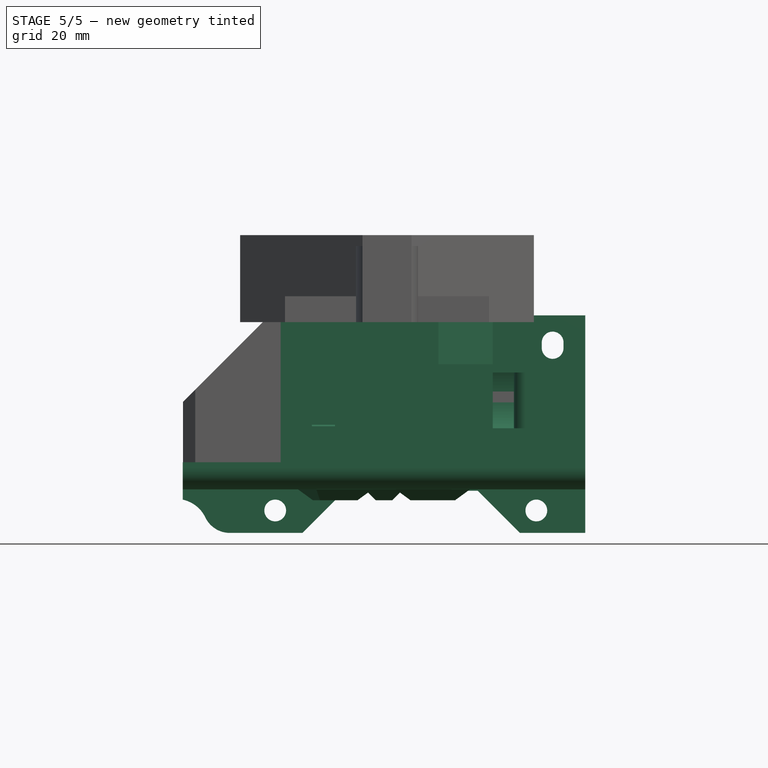
[diagram: stage 5 of 5 — front view after this stage's code; geometry added in this stage tinted green]
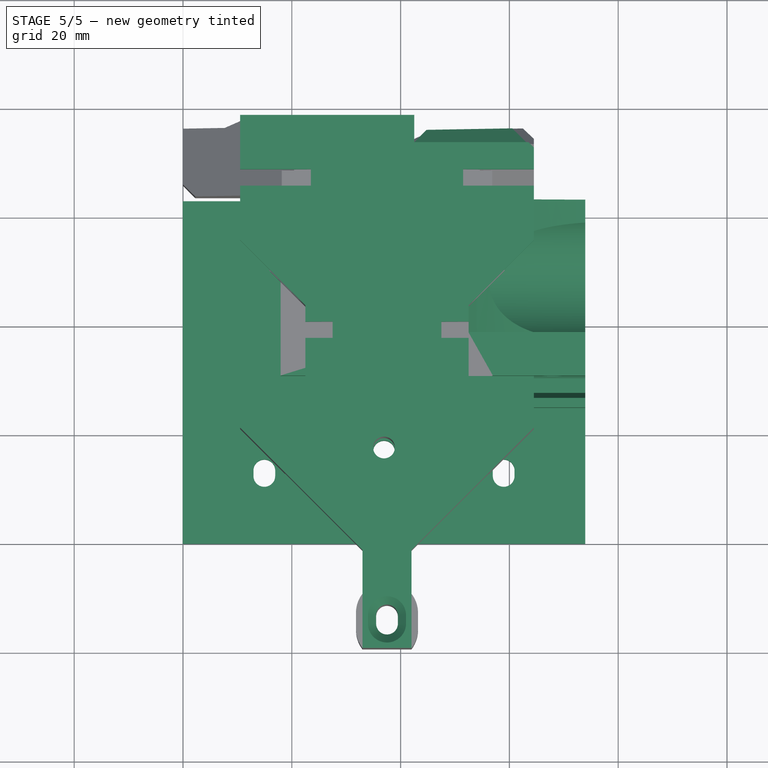
[diagram: stage 5 of 5 — top view after this stage's code; geometry added in this stage tinted green]
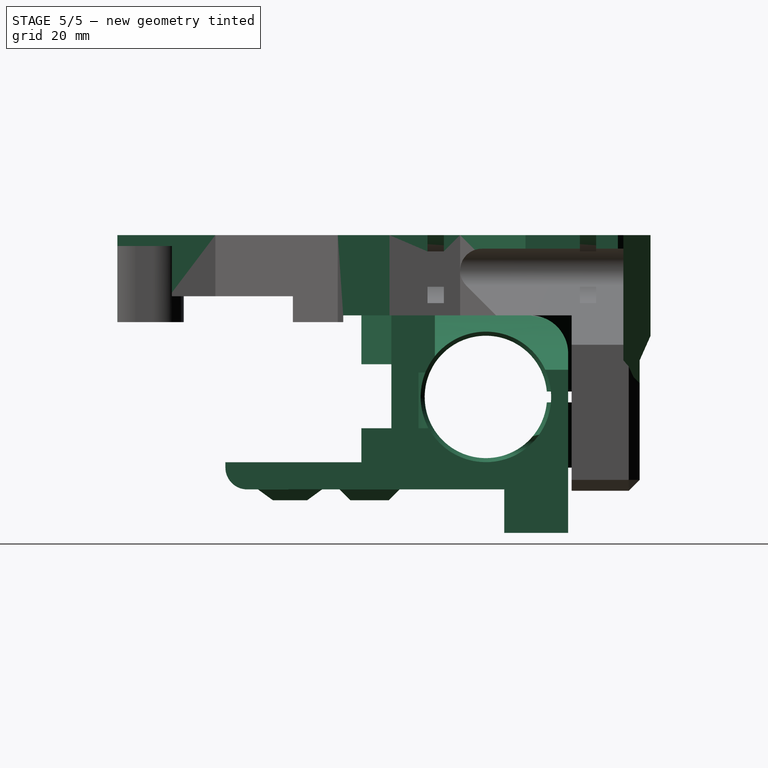
[diagram: stage 5 of 5 — right view after this stage's code; geometry added in this stage tinted green]
FEATURE [Sketcher::SketchObject] Sketch001
  MapMode = 5
  Placement = pos=(64.5,0,0) rot=(0.57735,0.57735,0.57735;2.0944rad)
  Support = -> [Pad]
  sketch-geometry (14):
    g0: LineSegment StartX=98 StartY=-18.25 StartZ=0 EndX=96 EndY=-23 EndZ=0
    g1: LineSegment StartX=96 StartY=-23 StartZ=0 EndX=96 EndY=-47 EndZ=0
    g2: LineSegment StartX=96 StartY=-47 StartZ=0 EndX=98 EndY=-47 EndZ=0
    g3: LineSegment StartX=98 StartY=-47 StartZ=0 EndX=98 EndY=-18.25 EndZ=0
    g4: LineSegment StartX=83.5 StartY=-47 StartZ=0 EndX=83.5 EndY=-14.75 EndZ=0
    g5: LineSegment StartX=83.5 StartY=-14.75 StartZ=0 EndX=41.5 EndY=-14.75 EndZ=0
    g6: LineSegment StartX=41.5 StartY=-14.75 StartZ=0 EndX=41.5 EndY=-16 EndZ=0
    g7: LineSegment StartX=41.5 StartY=-16 StartZ=0 EndX=32.25 EndY=-16 EndZ=0
    g8: LineSegment StartX=32.25 StartY=-16 StartZ=0 EndX=32.25 EndY=-11.25 EndZ=0
    g9: LineSegment StartX=32.25 StartY=-11.25 StartZ=0 EndX=9.5 EndY=-11.25 EndZ=0
    g10: LineSegment StartX=9.5 StartY=-11.25 StartZ=0 EndX=9.5 EndY=-16 EndZ=0
    g11: LineSegment StartX=9.5 StartY=-16 StartZ=0 EndX=0 EndY=-16 EndZ=0
    g12: LineSegment StartX=0 StartY=-16 StartZ=0 EndX=0 EndY=-47 EndZ=0
    g13: LineSegment StartX=0 StartY=-47 StartZ=0 EndX=83.5 EndY=-47 EndZ=0
  constraints (42):
    c: Coincident(g0,g1)
    c: Coincident(g1,g2)
    c: Coincident(g2,g3)
    c: Coincident(g4,g5)
    c: Coincident(g5,g6)
    c: Coincident(g6,g7)
    c: Coincident(g7,g8)
    c: Coincident(g8,g9)
    c: Coincident(g9,g10)
    c: Coincident(g10,g11)
    c: Coincident(g11,g12)
    c: Coincident(g12,g13)
    c: Coincident(g4,g13)
    c: PointOnObject(g11,g-2)
    c: Horizontal(g7)
    c: Horizontal(g9)
    c: Horizontal(g11)
    c: Horizontal(g5)
    c: Horizontal(g13)
    c: Vertical(g4)
    c: Vertical(g8)
    c: Vertical(g10)
    c: Vertical(g12)
    c: Vertical(g6)
    c: DistanceY(g11) = -16
    c: DistanceX(g11,g11) = 9.5
    c: DistanceY(g10,g10) = 4.75
    c: DistanceX(g9,g9) = 22.75
    c: DistanceY(g8,g8) = 4.75
    c: DistanceX(g7,g7) = 9.25
    c: DistanceY(g6,g6) = 1.25
    c: DistanceX(g5,g5) = 42
    c: DistanceY(g4,g4) = 32.25
    c: Coincident(g0,g3)
    c: Vertical(g3)
    c: Vertical(g1)
    c: Horizontal(g2)
    c: DistanceX(g0) = 98
    c: DistanceY(g0) = -18.25
    c: PointOnObject(g1,g13)
    c: DistanceX(g2,g2) = 2
    c: DistanceY(g1,g1) = 24
FEATURE [Sketcher::SketchObject] Sketch002
  MapMode = 5
  sketch-geometry (16):
    g0: LineSegment StartX=51.5 StartY=88 StartZ=0 EndX=64.5 EndY=88 EndZ=0
    g1: LineSegment StartX=64.5 StartY=88 StartZ=0 EndX=64.5 EndY=85 EndZ=0
    g2: LineSegment StartX=64.5 StartY=85 StartZ=0 EndX=51.5 EndY=85 EndZ=0
    g3: LineSegment StartX=51.5 StartY=85 StartZ=0 EndX=51.5 EndY=88 EndZ=0
    g4: LineSegment StartX=23.5 StartY=88 StartZ=0 EndX=10.5 EndY=88 EndZ=0
    g5: LineSegment StartX=10.5 StartY=88 StartZ=0 EndX=10.5 EndY=85 EndZ=0
    g6: LineSegment StartX=10.5 StartY=85 StartZ=0 EndX=23.5 EndY=85 EndZ=0
    g7: LineSegment StartX=23.5 StartY=85 StartZ=0 EndX=23.5 EndY=88 EndZ=0
    g8: LineSegment StartX=22.5 StartY=60 StartZ=0 EndX=27.5 EndY=60 EndZ=0
    g9: LineSegment StartX=27.5 StartY=60 StartZ=0 EndX=27.5 EndY=57 EndZ=0
    g10: LineSegment StartX=27.5 StartY=57 StartZ=0 EndX=22.5 EndY=57 EndZ=0
    g11: LineSegment StartX=22.5 StartY=57 StartZ=0 EndX=22.5 EndY=60 EndZ=0
    g12: LineSegment StartX=47.5 StartY=60 StartZ=0 EndX=52.5 EndY=60 EndZ=0
    g13: LineSegment StartX=52.5 StartY=60 StartZ=0 EndX=52.5 EndY=57 EndZ=0
    g14: LineSegment StartX=52.5 StartY=57 StartZ=0 EndX=47.5 EndY=57 EndZ=0
    g15: LineSegment StartX=47.5 StartY=57 StartZ=0 EndX=47.5 EndY=60 EndZ=0
  constraints (48):
    c: Coincident(g0,g1)
    c: Coincident(g1,g2)
    c: Coincident(g2,g3)
    c: Coincident(g3,g0)
    c: Horizontal(g0)
    c: Horizontal(g2)
    c: Vertical(g1)
    c: Vertical(g3)
    c: Coincident(g4,g5)
    c: Coincident(g5,g6)
    c: Coincident(g6,g7)
    c: Coincident(g7,g4)
    c: Horizontal(g4)
    c: Horizontal(g6)
    c: Vertical(g5)
    c: Vertical(g7)
    c: Coincident(g8,g9)
    c: Coincident(g9,g10)
    c: Coincident(g10,g11)
    c: Coincident(g11,g8)
    c: Horizontal(g8)
    c: Horizontal(g10)
    c: Vertical(g9)
    c: Vertical(g11)
    c: Coincident(g12,g13)
    c: Coincident(g13,g14)
    c: Coincident(g14,g15)
    c: Coincident(g15,g12)
    c: Horizontal(g12)
    c: Horizontal(g14)
    c: Vertical(g13)
    c: Vertical(g15)
    c: DistanceX(g10) = 22.5
    c: DistanceY(g10) = 57
    c: DistanceY(g11,g11) = 3
    c: DistanceX(g8,g8) = 5
    c: Equal(g15,g9)
    c: Equal(g8,g12)
    c: PointOnObject(g14,g10)
    c: DistanceX(g9,g14) = 20
    c: DistanceY(g5) = 85
    c: DistanceX(g6,g6) = 13
    c: DistanceY(g5,g5) = 3
    c: PointOnObject(g2,g6)
    c: Equal(g3,g7)
    c: Equal(g4,g0)
    c: DistanceX(g6,g2) = 28
    c: DistanceX(g5) = 10.5
FEATURE [Sketcher::SketchObject] Sketch003
  MapMode = 5
  Placement = pos=(0,98,0) rot=(0,0.707107,0.707107;3.14159rad)
  sketch-geometry (6):
    g0: LineSegment StartX=-87.5 StartY=0 StartZ=0 EndX=-41 EndY=0 EndZ=0
    g1: LineSegment StartX=-41 StartY=0 StartZ=0 EndX=-11.5 EndY=-29.5 EndZ=0
    g2: LineSegment StartX=0 StartY=-41 StartZ=0 EndX=0 EndY=-87.5 EndZ=0
    g3: LineSegment StartX=0 StartY=-87.5 StartZ=0 EndX=-87.5 EndY=0 EndZ=0
    g4: LineSegment StartX=-11.5 StartY=-29.5 StartZ=0 EndX=-11.5 EndY=-41 EndZ=0
    g5: LineSegment StartX=-11.5 StartY=-41 StartZ=0 EndX=0 EndY=-41 EndZ=0
  constraints (18):
    c: Coincident(g0,g1)
    c: Coincident(g2,g3)
    c: Coincident(g3,g0)
    c: Horizontal(g0)
    c: PointOnObject(g2,g-2)
    c: PointOnObject(g0,g-1)
    c: PointOnObject(g2,g-2)
    c: Angle(g1) = -0.785398
    c: Parallel(g1,g3)
    c: DistanceX(g0,g0) = 46.5
    c: DistanceY(g2) = -41
    c: Coincident(g4,g5)
    c: Coincident(g2,g5)
    c: Horizontal(g5)
    c: Vertical(g4)
    c: DistanceX(g5,g5) = 11.5
    c: Coincident(g1,g4)
    c: DistanceY(g4,g4) = 11.5
FEATURE [Sketcher::SketchObject] Sketch004
  MapMode = 5
  Placement = pos=(0,98,0) rot=(0,0.707107,0.707107;3.14159rad)
  sketch-geometry (14):
    g0: ArcOfCircle CenterX=-56.5 CenterY=-6.5 CenterZ=0 NormalX=0 NormalY=0 NormalZ=1 AngleXU=0 Radius=4 StartAngle=5.49779 EndAngle=7.85398
    g1: ArcOfCircle CenterX=-18.5 CenterY=-6.5 CenterZ=0 NormalX=0 NormalY=0 NormalZ=1 AngleXU=0 Radius=4 StartAngle=1.5708 EndAngle=3.92699
    g2: LineSegment StartX=-56.5 StartY=-2.5 StartZ=0 EndX=-64.5 EndY=-2.5 EndZ=0
    g3: LineSegment StartX=-64.5 StartY=-2.5 StartZ=0 EndX=-64.5 EndY=-20.1569 EndZ=0
    g4: LineSegment StartX=-64.5 StartY=-20.1569 StartZ=0 EndX=-53.6716 EndY=-9.32843 EndZ=0
    g5: LineSegment StartX=-18.5 StartY=-2.5 StartZ=0 EndX=-10.5 EndY=-2.5 EndZ=0
    g6: LineSegment StartX=0 StartY=0 StartZ=0 EndX=0 EndY=-30.6569 EndZ=0
    g7: LineSegment StartX=0 StartY=-30.6569 StartZ=0 EndX=-21.3284 EndY=-9.32843 EndZ=0
    g8: LineSegment [constr] StartX=-64.5 StartY=-2.5 StartZ=0 EndX=0 EndY=-2.5 EndZ=0
    g9: LineSegment [constr] StartX=0 StartY=-2.5 StartZ=0 EndX=0 EndY=-30.6569 EndZ=0
    g10: LineSegment [constr] StartX=0 StartY=-30.6569 StartZ=0 EndX=-64.5 EndY=-30.6569 EndZ=0
    g11: LineSegment [constr] StartX=-64.5 StartY=-30.6569 StartZ=0 EndX=-64.5 EndY=-2.5 EndZ=0
    g12: LineSegment StartX=-10.5 StartY=-2.5 StartZ=0 EndX=-10.5 EndY=0 EndZ=0
    g13: LineSegment StartX=-10.5 StartY=0 StartZ=0 EndX=0 EndY=0 EndZ=0
  constraints (38):
    c: Coincident(g2,g3)
    c: Coincident(g6,g7)
    c: Tangent(g0,g4) = -1.5708
    c: Tangent(g0,g2) = -1.5708
    c: Tangent(g1,g7) = 1.5708
    c: Tangent(g1,g5) = 1.5708
    c: Horizontal(g2)
    c: Horizontal(g5)
    c: Vertical(g6)
    c: Vertical(g3)
    c: PointOnObject(g6,g-2)
    c: DistanceY(g5) = -2.5
    c: Angle(g7) = 2.35619
    c: Radius(g1) = 4
    c: Coincident(g9,g10)
    c: Coincident(g11,g8)
    c: Horizontal(g8)
    c: Horizontal(g10)
    c: Vertical(g9)
    c: Vertical(g11)
    c: Coincident(g6,g9)
    c: Coincident(g2,g8)
    c: DistanceX(g8,g8) = 64.5
    c: Equal(g0,g1)
    c: Coincident(g6,g-1)
    c: Coincident(g8,g9)
    c: PointOnObject(g8,g5)
    c: Coincident(g12,g13)
    c: Coincident(g6,g13)
    c: Coincident(g5,g12)
    c: Vertical(g12)
    c: Horizontal(g13)
    c: DistanceX(g13,g13) = 10.5
    c: DistanceX(g5,g5) = 8
    c: Coincident(g3,g4)
    c: Coincident(g10,g11)
    c: Angle(g4) = 0.785398
    c: Equal(g2,g5)
FEATURE [Sketcher::SketchObject] Sketch005
  MapMode = 5
  Placement = pos=(0,57,0) rot=(0,0.707107,0.707107;3.14159rad)
  sketch-geometry (22):
    g0: ArcOfCircle CenterX=-47.5 CenterY=-6.25 CenterZ=0 NormalX=0 NormalY=0 NormalZ=1 AngleXU=0 Radius=3.25 StartAngle=4.71239 EndAngle=7.85398
    g1: ArcOfCircle CenterX=-27.5 CenterY=-6.25 CenterZ=0 NormalX=0 NormalY=0 NormalZ=1 AngleXU=0 Radius=3.25 StartAngle=1.57079 EndAngle=4.71239
    g2: ArcOfCircle CenterX=-27.5 CenterY=-6.25 CenterZ=0 NormalX=0 NormalY=0 NormalZ=1 AngleXU=0 Radius=6.25 StartAngle=1.57079 EndAngle=4.71239
    g3: ArcOfCircle CenterX=-47.5 CenterY=-6.25 CenterZ=0 NormalX=0 NormalY=0 NormalZ=1 AngleXU=0 Radius=6.25 StartAngle=4.71239 EndAngle=7.85398
    g4: LineSegment StartX=-27.5 StartY=-9.5 StartZ=0 EndX=0 EndY=-9.5 EndZ=0
    g5: LineSegment StartX=0 StartY=-9.5 StartZ=0 EndX=0 EndY=-12.5 EndZ=0
    g6: LineSegment StartX=0 StartY=-12.5 StartZ=0 EndX=-27.5 EndY=-12.5 EndZ=0
    g7: LineSegment [constr] StartX=-27.5 StartY=-12.5 StartZ=0 EndX=-27.5 EndY=-9.5 EndZ=0
    g8: LineSegment StartX=-27.5 StartY=0 StartZ=0 EndX=-27.5 EndY=-3 EndZ=0
    g9: LineSegment StartX=-47.5 StartY=-9.5 StartZ=0 EndX=-75 EndY=-9.5 EndZ=0
    g10: LineSegment StartX=-75 StartY=-9.5 StartZ=0 EndX=-75 EndY=-12.5 EndZ=0
    g11: LineSegment StartX=-75 StartY=-12.5 StartZ=0 EndX=-47.5 EndY=-12.5 EndZ=0
    g12: LineSegment [constr] StartX=-47.5 StartY=-12.5 StartZ=0 EndX=-47.5 EndY=-9.5 EndZ=0
    g13: LineSegment StartX=-47.5 StartY=0 StartZ=0 EndX=-47.5 EndY=-3 EndZ=0
    g14: LineSegment [constr] StartX=-47.5 StartY=0 StartZ=0 EndX=-27.5 EndY=0 EndZ=0
    g15: LineSegment [constr] StartX=-27.5 StartY=0 StartZ=0 EndX=-27.5 EndY=-3 EndZ=0
    g16: LineSegment [constr] StartX=-27.5 StartY=-3 StartZ=0 EndX=-47.5 EndY=-3 EndZ=0
    g17: LineSegment [constr] StartX=-47.5 StartY=-3 StartZ=0 EndX=-47.5 EndY=0 EndZ=0
    g18: LineSegment [constr] StartX=-27.5 StartY=-9.5 StartZ=0 EndX=-47.5 EndY=-9.5 EndZ=0
    g19: LineSegment [constr] StartX=-47.5 StartY=-9.5 StartZ=0 EndX=-47.5 EndY=-12.5 EndZ=0
    g20: LineSegment [constr] StartX=-47.5 StartY=-12.5 StartZ=0 EndX=-27.5 EndY=-12.5 EndZ=0
    g21: LineSegment [constr] StartX=-27.5 StartY=-12.5 StartZ=0 EndX=-27.5 EndY=-9.5 EndZ=0
  constraints (62):
    c: Coincident(g0,g3)
    c: Coincident(g1,g2)
    c: Tangent(g-1,g2)
    c: Tangent(g3,g-1)
    c: Coincident(g4,g5)
    c: Coincident(g5,g6)
    c: Coincident(g6,g7)
    c: Coincident(g7,g4)
    c: Horizontal(g4)
    c: Horizontal(g6)
    c: Vertical(g5)
    c: Vertical(g7)
    c: Coincident(g1,g4)
    c: Coincident(g2,g6)
    c: DistanceX(g1,g1) = 0
    c: Coincident(g1,g8)
    c: Coincident(g2,g8)
    c: PointOnObject(g5,g-2)
    c: Coincident(g9,g10)
    c: Coincident(g10,g11)
    c: Coincident(g11,g12)
    c: Coincident(g12,g9)
    c: Horizontal(g9)
    c: Horizontal(g11)
    c: Vertical(g10)
    c: Vertical(g12)
    c: Coincident(g3,g11)
    c: Equal(g11,g6)
    c: Coincident(g0,g13)
    c: Coincident(g3,g13)
    c: Vertical(g8)
    c: PointOnObject(g2,g-1)
    c: DistanceY(g8,g8) = 3
    c: DistanceX(g1) = -27.5
    c: DistanceY(g1) = -6.25
    c: Tangent(g0,g9) = 1.5708
    c: Vertical(g13)
    c: Coincident(g14,g15)
    c: Coincident(g15,g16)
    c: Coincident(g16,g17)
    c: Coincident(g17,g14)
    c: Horizontal(g14)
    c: Horizontal(g16)
    c: Vertical(g15)
    c: Vertical(g17)
    c: Coincident(g18,g19)
    c: Coincident(g19,g20)
    c: Coincident(g20,g21)
    c: Coincident(g21,g18)
    c: Horizontal(g18)
    c: Horizontal(g20)
    c: Vertical(g19)
    c: Vertical(g21)
    c: Coincident(g0,g18)
    c: Coincident(g3,g19)
    c: Coincident(g1,g18)
    c: Coincident(g2,g20)
    c: Coincident(g0,g16)
    c: Coincident(g3,g14)
    c: DistanceX(g0,g1) = 20
    c: DistanceX(g0,g0) = 0
    c: Coincident(g14,g2)
FEATURE [Sketcher::SketchObject] Sketch006
  MapMode = 5
  Placement = pos=(0,85,0) rot=(0,0.707107,0.707107;3.14159rad)
  sketch-geometry (21):
    g0: ArcOfCircle CenterX=-51.5 CenterY=-6.25 CenterZ=0 NormalX=0 NormalY=0 NormalZ=1 AngleXU=0 Radius=3.25 StartAngle=4.71239 EndAngle=7.85398
    g1: ArcOfCircle CenterX=-23.5 CenterY=-6.25 CenterZ=0 NormalX=0 NormalY=0 NormalZ=1 AngleXU=0 Radius=3.25 StartAngle=1.5708 EndAngle=4.71239
    g2: LineSegment StartX=0 StartY=0 StartZ=0 EndX=-23.5 EndY=0 EndZ=0
    g3: LineSegment [constr] StartX=-23.5 StartY=0 StartZ=0 EndX=-23.5 EndY=-3 EndZ=0
    g4: LineSegment StartX=-23.5 StartY=-3 StartZ=0 EndX=0 EndY=-3 EndZ=0
    g5: LineSegment StartX=0 StartY=-3 StartZ=0 EndX=0 EndY=0 EndZ=0
    g6: LineSegment StartX=-68.5 StartY=-3.1e-11 StartZ=0 EndX=-51.5 EndY=-3.1e-11 EndZ=0
    g7: LineSegment [constr] StartX=-51.5 StartY=-3.1e-11 StartZ=0 EndX=-51.5 EndY=-3 EndZ=0
    g8: LineSegment StartX=-51.5 StartY=-3 StartZ=0 EndX=-68.5 EndY=-3 EndZ=0
    g9: LineSegment StartX=-68.5 StartY=-3 StartZ=0 EndX=-68.5 EndY=-3.1e-11 EndZ=0
    g10: LineSegment StartX=-51.5 StartY=-9.5 StartZ=0 EndX=-68.5 EndY=-9.5 EndZ=0
    g11: LineSegment StartX=-68.5 StartY=-9.5 StartZ=0 EndX=-68.5 EndY=-12.5 EndZ=0
    g12: LineSegment StartX=-68.5 StartY=-12.5 StartZ=0 EndX=-51.5 EndY=-12.5 EndZ=0
    g13: LineSegment [constr] StartX=-51.5 StartY=-12.5 StartZ=0 EndX=-51.5 EndY=-9.5 EndZ=0
    g14: LineSegment StartX=-23.5 StartY=-9.5 StartZ=0 EndX=0 EndY=-9.5 EndZ=0
    g15: LineSegment StartX=0 StartY=-9.5 StartZ=0 EndX=0 EndY=-12.5 EndZ=0
    g16: LineSegment StartX=0 StartY=-12.5 StartZ=0 EndX=-23.5 EndY=-12.5 EndZ=0
    g17: LineSegment [constr] StartX=-23.5 StartY=-12.5 StartZ=0 EndX=-23.5 EndY=-9.5 EndZ=0
    g18: ArcOfCircle CenterX=-51.5 CenterY=-6.25 CenterZ=0 NormalX=0 NormalY=0 NormalZ=1 AngleXU=0 Radius=6.25 StartAngle=4.71239 EndAngle=7.85398
    g19: ArcOfCircle CenterX=-23.5 CenterY=-6.25 CenterZ=0 NormalX=0 NormalY=0 NormalZ=1 AngleXU=0 Radius=6.25 StartAngle=1.5708 EndAngle=4.71239
    g20: LineSegment [constr] StartX=-51.5 StartY=-6.25 StartZ=0 EndX=-23.5 EndY=-6.25 EndZ=0
  constraints (57):
    c: Coincident(g2,g3)
    c: Coincident(g3,g4)
    c: Coincident(g4,g5)
    c: Coincident(g5,g2)
    c: Horizontal(g2)
    c: Horizontal(g4)
    c: Vertical(g3)
    c: Vertical(g5)
    c: Coincident(g2,g-1)
    c: DistanceY(g5,g5) = 3
    c: Tangent(g1,g4)
    c: Coincident(g7,g8)
    c: Coincident(g8,g9)
    c: Coincident(g9,g6)
    c: Horizontal(g6)
    c: Horizontal(g8)
    c: Vertical(g7)
    c: Vertical(g9)
    c: Coincident(g10,g11)
    c: Coincident(g11,g12)
    c: Coincident(g12,g13)
    c: Coincident(g13,g10)
    c: Horizontal(g10)
    c: Horizontal(g12)
    c: Vertical(g11)
    c: Vertical(g13)
    c: Coincident(g0,g7)
    c: Tangent(g0,g8)
    c: Tangent(g0,g10) = 1.5708
    c: Coincident(g14,g15)
    c: Coincident(g15,g16)
    c: Coincident(g16,g17)
    c: Coincident(g17,g14)
    c: Horizontal(g14)
    c: Horizontal(g16)
    c: Vertical(g15)
    c: Vertical(g17)
    c: PointOnObject(g15,g-2)
    c: Tangent(g1,g14) = -1.5708
    c: Coincident(g12,g18)
    c: Equal(g9,g5)
    c: Coincident(g6,g18)
    c: Coincident(g0,g18)
    c: Equal(g0,g1)
    c: PointOnObject(g10,g9)
    c: DistanceX(g6,g6) = 17
    c: Coincident(g16,g19)
    c: Coincident(g2,g19)
    c: Coincident(g1,g19)
    c: DistanceX(g1) = -23.5
    c: DistanceY(g1) = -6.25
    c: Tangent(g1,g4) = 1.5708
    c: Coincident(g1,g20)
    c: Coincident(g0,g20)
    c: Horizontal(g20)
    c: Coincident(g6,g7)
    c: DistanceX(g20,g20) = 28
FEATURE [Sketcher::SketchObject] Sketch007
  MapMode = 5
  Placement = pos=(0,98,0) rot=(0,0.707107,0.707107;3.14159rad)
  sketch-geometry (2):
    g0: Circle CenterX=-28.5 CenterY=-5.5 CenterZ=0 NormalX=0 NormalY=0 NormalZ=1 AngleXU=0 Radius=2.35
    g1: Circle CenterX=-5.75 CenterY=-35 CenterZ=0 NormalX=0 NormalY=0 NormalZ=1 AngleXU=0 Radius=2.35
  constraints (6):
    c: DistanceY(g0) = -5.5
    c: Radius(g0) = 2.35
    c: DistanceX(g0) = -28.5
    c: DistanceX(g1) = -5.75
    c: DistanceY(g1) = -35
    c: Equal(g1,g0)
FEATURE [Sketcher::SketchObject] Sketch010
  MapMode = 5
  Placement = pos=(0,0,-47) rot=(1,0,0;3.14159rad)
  sketch-geometry (4):
    g0: LineSegment StartX=32.75 StartY=-87.8 StartZ=0 EndX=41.1 EndY=-87.8 EndZ=0
    g1: LineSegment StartX=41.1 StartY=-87.8 StartZ=0 EndX=45.4 EndY=-83.5 EndZ=0
    g2: LineSegment StartX=45.4 StartY=-83.5 StartZ=0 EndX=28.45 EndY=-83.5 EndZ=0
    g3: LineSegment StartX=28.45 StartY=-83.5 StartZ=0 EndX=32.75 EndY=-87.8 EndZ=0
  constraints (12):
    c: Coincident(g0,g1)
    c: Coincident(g1,g2)
    c: Coincident(g2,g3)
    c: Coincident(g3,g0)
    c: Horizontal(g0)
    c: Horizontal(g2)
    c: DistanceY(g0) = -87.8
    c: DistanceX(g0,g0) = 8.35
    c: DistanceY(g3,g3) = 4.3
    c: Angle(g3) = -0.785398
    c: Angle(g1) = 0.785398
    c: DistanceX(g2) = 28.45
FEATURE [Sketcher::SketchObject] Sketch011
  MapMode = 5
  sketch-geometry (1):
    g0: Circle CenterX=37.45 CenterY=55.6 CenterZ=0 NormalX=0 NormalY=0 NormalZ=1 AngleXU=0 Radius=2
  constraints (3):
    c: DistanceY(g0) = 55.6
    c: Radius(g0) = 2
    c: DistanceX(g0) = 37.45
FEATURE [Part::FeaturePython] x_carriage_v0_1_01  # a2plus imported part (geometry in sourceFile) (typed FeaturePython)
  Placement = pos=(73.95,82.85,-54.75) rot=(0.57735,0.57735,-0.57735;4.18879rad)
  fixedPosition = false
  sourceFile = <userpath>/Projects/taz-redgum/production_parts/printed_parts/x_carriage/x_carriage_v0.1.fcstd
  timeLastImport = 1.5526e+09
  updateColors = true
FEATURE [Sketcher::SketchObject] Sketch018
  MapMode = 5
  Placement = pos=(0,96,0) rot=(0,0.707107,0.707107;3.14159rad)
  sketch-geometry (1):
    g0: Circle CenterX=-54.5 CenterY=-39 CenterZ=0 NormalX=0 NormalY=0 NormalZ=1 AngleXU=0 Radius=3
  constraints (3):
    c: DistanceX(g0) = -54.5
    c: DistanceY(g0) = -39
    c: Radius(g0) = 3
FEATURE [Part::FeaturePython] x_carriage_cover_v1_1_01  # a2plus imported part (geometry in sourceFile) (typed FeaturePython)
  Placement = pos=(10.5,0,0) rot=(0,0,1;0rad)
  fixedPosition = true
  sourceFile = <userpath>/Projects/taz-redgum/production_parts/printed_parts/x_carriage_cover/x_carriage_cover_v1.1.fcstd
  timeLastImport = 1.55295e+09
  updateColors = true
FEATURE [Sketcher::SketchObject] Sketch024
  MapMode = 5
  Placement = pos=(0,0,-2) rot=(0,0,1;0rad)
  Support = -> [Chamfer005]
  sketch-geometry (1):
    g0: Circle CenterX=55.9524 CenterY=38.1041 CenterZ=0 NormalX=0 NormalY=0 NormalZ=1 AngleXU=0 Radius=2.35
  constraints (1):
    c: Radius(g0) = 2.35
FEATURE [PartDesign::Pocket] Pocket018
  BaseFeature = -> Chamfer005
  Length = 8
  Length2 = 100
  Profile = -> Sketch024
  Type = 0
FEATURE [PartDesign::Chamfer] Chamfer006
  Base = -> Pocket018 [Edge104]
  BaseFeature = -> Pocket018
  Size = 1
FEATURE [Sketcher::SketchObject] Sketch025
  ExternalGeometry = -> [Chamfer006]
  MapMode = 5
  Placement = pos=(0,0,-2) rot=(0,0,1;0rad)
  Support = -> [Chamfer006]
  sketch-geometry (5):
    g0: LineSegment StartX=48.1524 StartY=40.6041 StartZ=0 EndX=51.1524 EndY=40.6041 EndZ=0
    g1: LineSegment StartX=51.1524 StartY=40.6041 StartZ=0 EndX=51.1524 EndY=35.6041 EndZ=0
    g2: LineSegment StartX=51.1524 StartY=35.6041 StartZ=0 EndX=48.1524 EndY=35.6041 EndZ=0
    g3: LineSegment StartX=48.1524 StartY=35.6041 StartZ=0 EndX=48.1524 EndY=40.6041 EndZ=0
    g4: LineSegment [constr] StartX=55.9524 StartY=38.1041 StartZ=0 EndX=45.5266 EndY=38.1041 EndZ=0
  constraints (14):
    c: Coincident(g0,g1)
    c: Coincident(g1,g2)
    c: Coincident(g2,g3)
    c: Coincident(g3,g0)
    c: Horizontal(g0)
    c: Horizontal(g2)
    c: Vertical(g1)
    c: Vertical(g3)
    c: Distance(g0) = 3
    c: Distance(g1) = 5
    c: Coincident(g4,g-3)
    c: Horizontal(g4)
    c: Symmetric(g2,g0,g4)
    c: DistanceX(g1,g4) = 4.8
FEATURE [PartDesign::Pocket] Pocket019
  BaseFeature = -> Chamfer006
  Length = 3
  Length2 = 100
  Profile = -> Sketch025
  Type = 0
FEATURE [PartDesign::Chamfer] Chamfer007
  Base = -> Pocket019 [Edge60,Edge59,Edge62,Edge61]
  BaseFeature = -> Pocket019
  Size = 1
FEATURE [PartDesign::Body] Body
  Group = -> [Sketch,Pad,Sketch001,Sketch002,Sketch003,Sketch004,Sketch005,Sketch006,Sketch007,Sketch010,Sketch011,Sketch012,Sketch013,Sketch015,Sketch016,Pocket,Pocket001,Pocket002,Pocket003,Pocket004,Pocket005,Pocket006,Pocket007,Pocket008,Pocket009,Pocket010,Pocket011,Sketch018,Sketch019,Sketch020,Pocket012,Pocket013,Pocket014,Pad001,Sketch021,Pocket015,Sketch022,Sketch023,Pocket016,Chamfer,Pocket017,+11 more]
  Origin = -> Origin
  Tip = -> Chamfer007
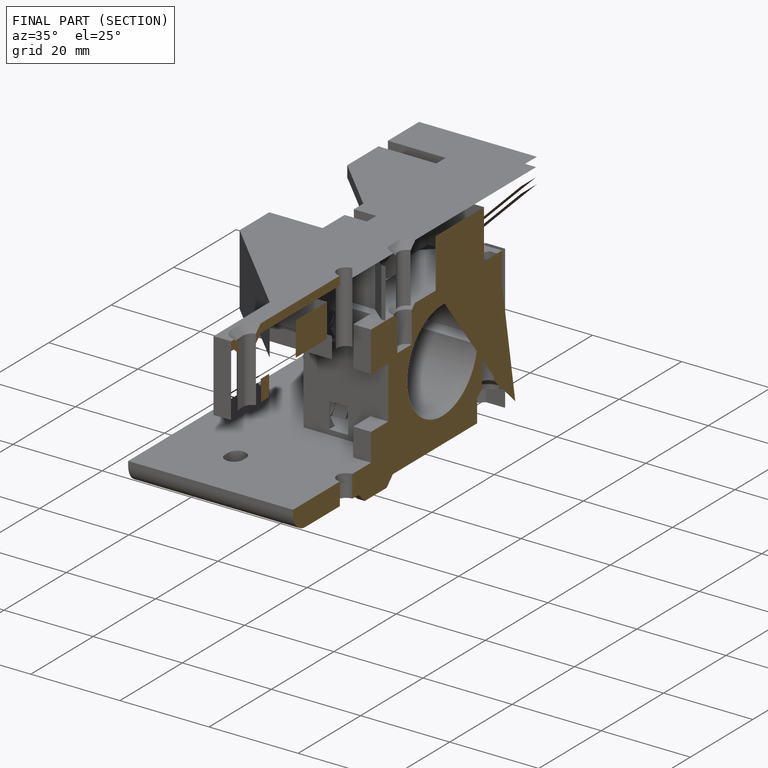
[diagram: finished part — half-section view (interior)]
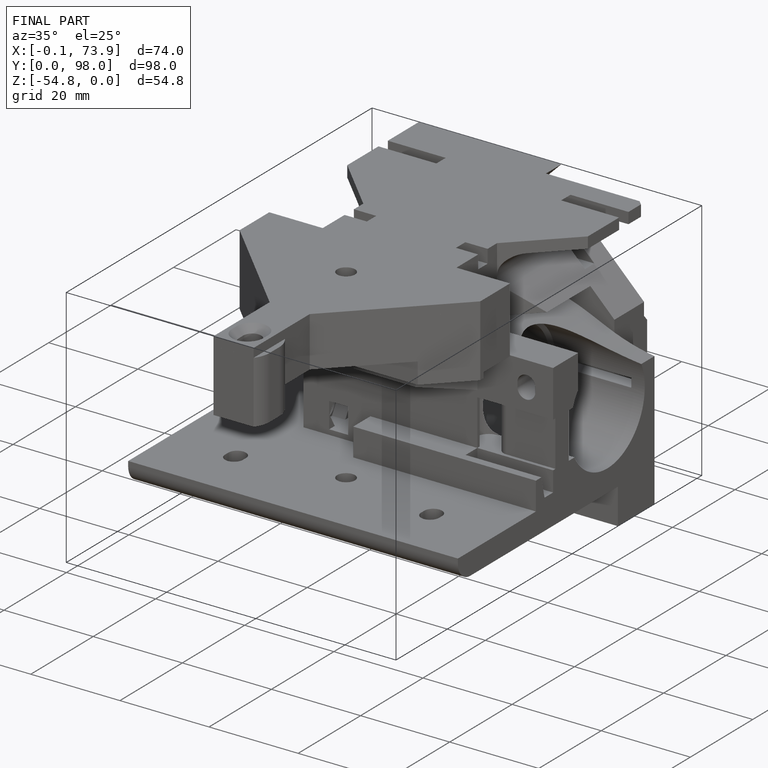
[diagram: finished part — iso view with bounding-box wireframe]
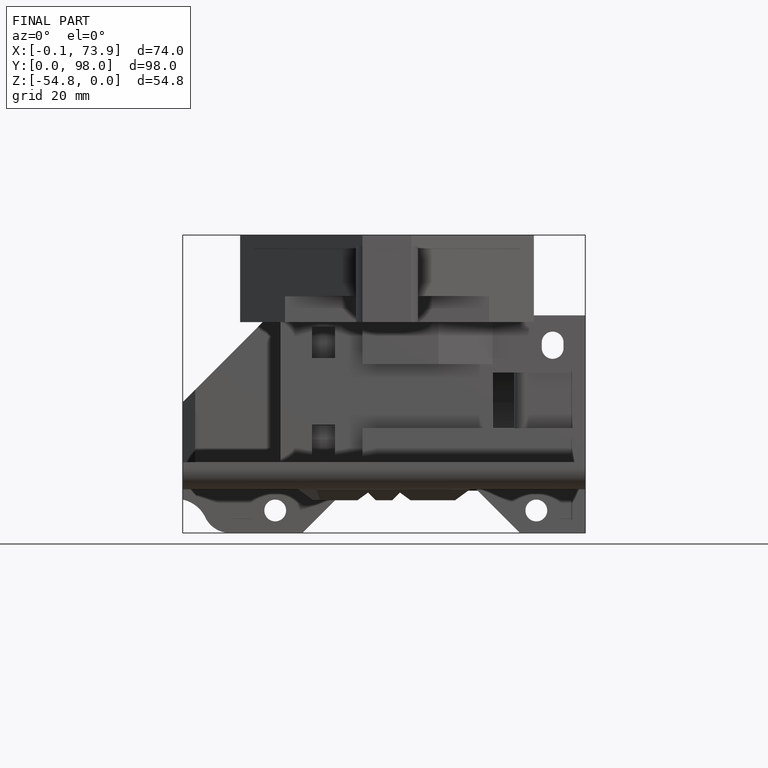
[diagram: finished part — front view with bounding-box wireframe]
